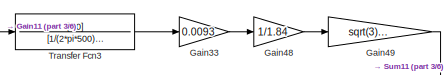
[diagram: root canvas - part 1/6, top center region]
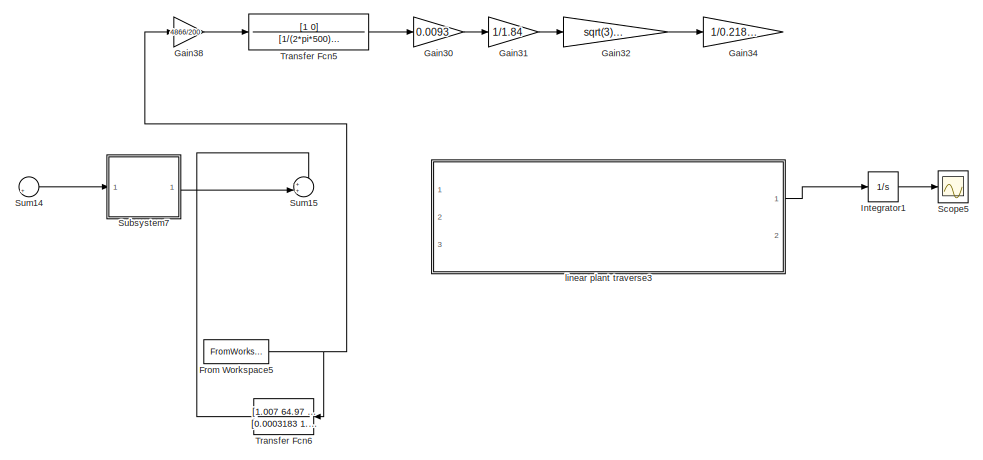
[diagram: root canvas - part 2/6, top right region]
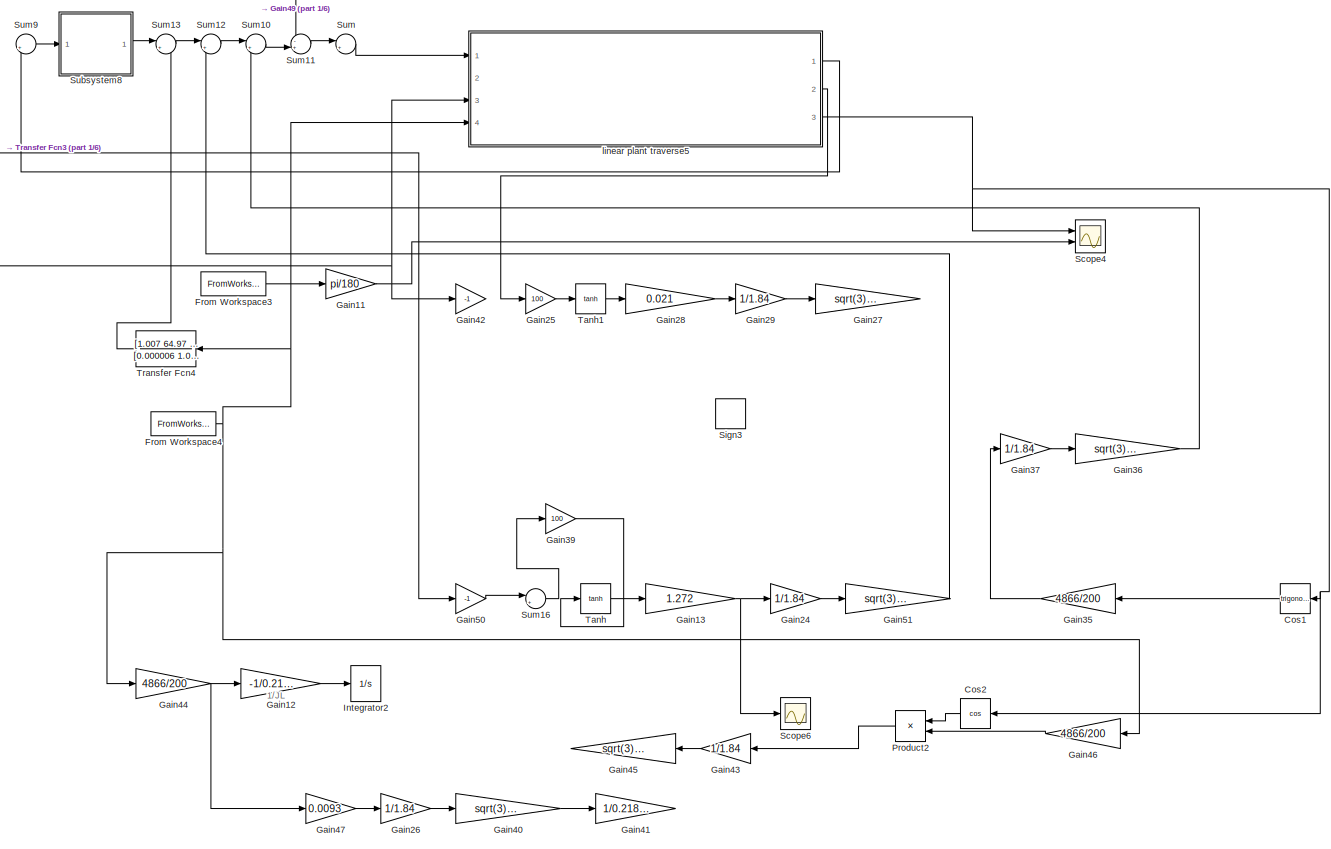
[diagram: root canvas - part 3/6, top right region]
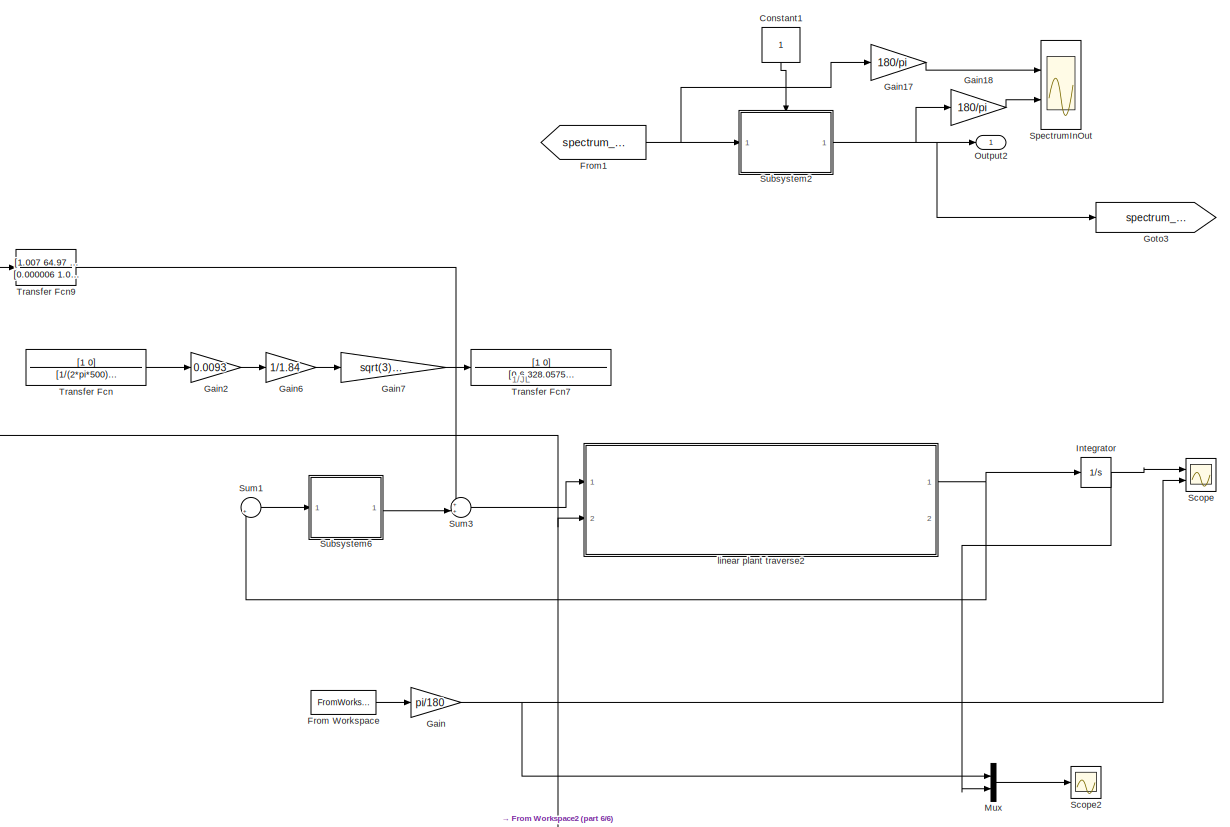
[diagram: root canvas - part 4/6, top left region]
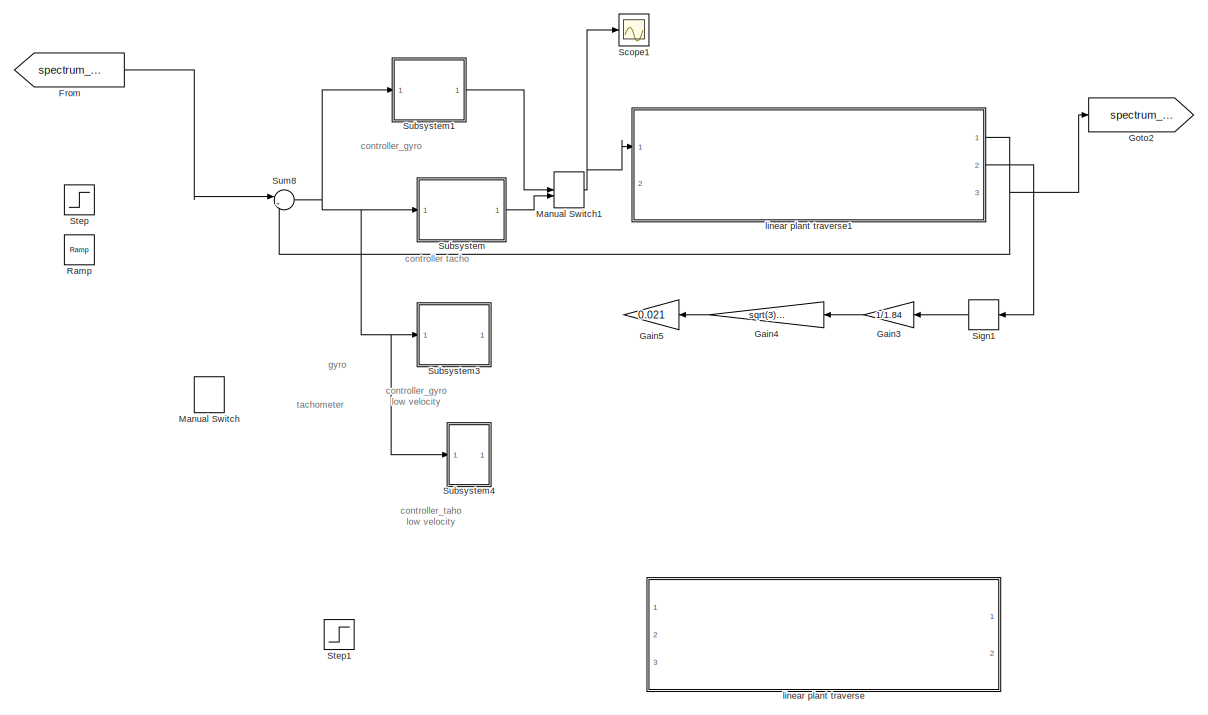
[diagram: root canvas - part 5/6, middle left region]
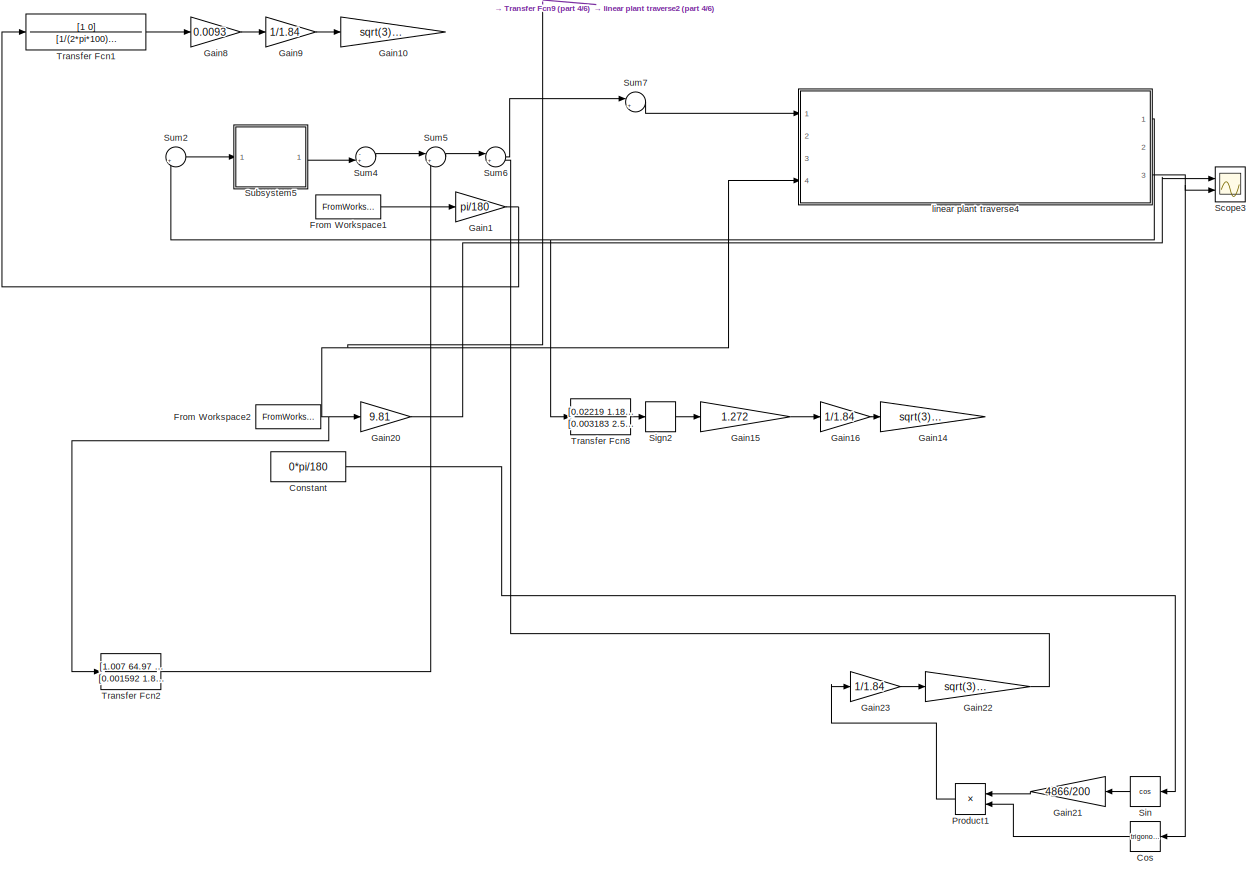
[diagram: root canvas - part 6/6, bottom left region]
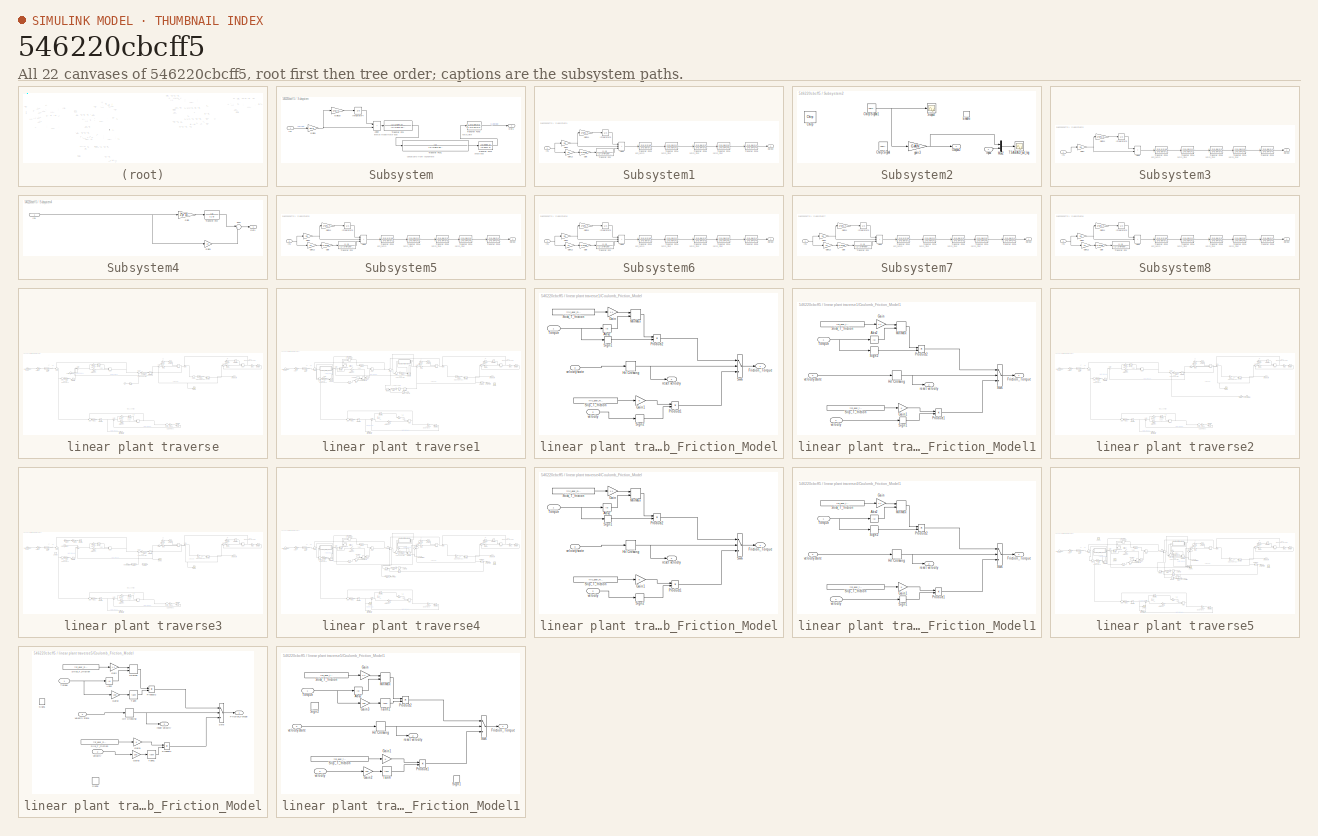
[diagram: thumbnail index - all 22 canvases of the model, root first then tree order]
MODEL slx_546220cbcff5
KIND model
CONFIG AbsTol = auto
CONFIG EnableMultiTasking = off
CONFIG FixedStep = auto
CONFIG MaxStep = auto
CONFIG MinStep = auto
CONFIG RelTol = 1e-3
CONFIG SampleTimeConstraint = Unconstrained
CONFIG SolverName = ode45
CONFIG StartTime = 0.0
CONFIG StopTime = 20
WORKSPACE source: mxarray member
WORKSPACE real_gyro_traverse_system: object (value not decoded)
BLOCK [Constant] Constant
  SampleTime = -1
  Value = 0*pi/180
BLOCK [Constant] Constant1
  AttributesFormatString = 1 - START\n0 -STOP\ninternal spectrum
  NameLocation = left
  OpenFcn = if get_param(gcbh,'value')-48 set_param(gcbh,'value','0','backgroundcolor','red');\nelse set_param(gcbh,'value','1','backgroundcolor','green');                       \nend
  OutDataTypeStr = boolean
BLOCK [Trigonometry] Cos
  Ports = [1, 1]
BLOCK [Trigonometry] Cos1
  Ports = [1, 1]
BLOCK [Trigonometry] Cos2
  Operator = cos
  Ports = [1, 1]
BLOCK [From] From
  GotoTag = spectrum_signal
BLOCK [FromWorkspace] From Workspace
  OutputAfterFinalValue = Setting to zero
  SampleTime = ts3/3
  VariableName = trdist
  ZeroCross = off
BLOCK [FromWorkspace] From Workspace1
  OutputAfterFinalValue = Setting to zero
  SampleTime = ts3/3
  VariableName = trdist
  ZeroCross = off
BLOCK [FromWorkspace] From Workspace2
  Interpolate = off
  OutputAfterFinalValue = Setting to zero
  SampleTime = ts3/3
  VariableName = gy
  ZeroCross = off
BLOCK [FromWorkspace] From Workspace3
  Interpolate = off
  OutputAfterFinalValue = Setting to zero
  SampleTime = ts3/3
  VariableName = trdist
  ZeroCross = off
BLOCK [FromWorkspace] From Workspace4
  Interpolate = off
  OutputAfterFinalValue = Setting to zero
  SampleTime = ts3/3
  VariableName = gy
  ZeroCross = off
BLOCK [FromWorkspace] From Workspace5
  Interpolate = off
  OutputAfterFinalValue = Setting to zero
  SampleTime = ts3/3
  VariableName = gy
  ZeroCross = off
BLOCK [From] From1
  GotoTag = spectrum_back
BLOCK [Gain] Gain
  Gain = pi/180
BLOCK [Gain] Gain1
  Gain = pi/180
BLOCK [Gain] Gain10
  Gain = sqrt(3)/0.3525
BLOCK [Gain] Gain11
  Gain = pi/180
BLOCK [Gain] Gain12
  Gain = -1/0.2189801
BLOCK [Gain] Gain13
  Gain = 1.272
BLOCK [Gain] Gain14
  Gain = sqrt(3)/0.3525
BLOCK [Gain] Gain15
  Gain = 1.272
BLOCK [Gain] Gain16
  Gain = 1/1.84
BLOCK [Gain] Gain17
  Gain = 180/pi
BLOCK [Gain] Gain18
  Gain = 180/pi
BLOCK [Gain] Gain2
  Gain = 0.0093
BLOCK [Gain] Gain20
  Gain = 9.81
BLOCK [Gain] Gain21
  Gain = 4866/200
BLOCK [Gain] Gain22
  Gain = sqrt(3)/0.3525
BLOCK [Gain] Gain23
  Gain = 1/1.84
BLOCK [Gain] Gain24
  Gain = 1/1.84
BLOCK [Gain] Gain25
  Gain = 100
BLOCK [Gain] Gain26
  Gain = 1/1.84
BLOCK [Gain] Gain27
  Gain = sqrt(3)/0.3525
BLOCK [Gain] Gain28
  Gain = 0.021
BLOCK [Gain] Gain29
  Gain = 1/1.84
BLOCK [Gain] Gain3
  Gain = 1/1.84
BLOCK [Gain] Gain30
  Gain = 0.0093
BLOCK [Gain] Gain31
  Gain = 1/1.84
BLOCK [Gain] Gain32
  Gain = sqrt(3)/0.3525
BLOCK [Gain] Gain33
  Gain = 0.0093
BLOCK [Gain] Gain34
  Commented = through
  Gain = 1/0.2189801
BLOCK [Gain] Gain35
  Gain = 4866/200
BLOCK [Gain] Gain36
  Gain = sqrt(3)/0.3525
BLOCK [Gain] Gain37
  Gain = 1/1.84
BLOCK [Gain] Gain38
  Gain = 4866/200
BLOCK [Gain] Gain39
  Gain = 100
BLOCK [Gain] Gain4
  Gain = sqrt(3)/0.3525
BLOCK [Gain] Gain40
  Gain = sqrt(3)/0.3525
BLOCK [Gain] Gain41
  Gain = 1/0.2189801
BLOCK [Gain] Gain42
  Gain = -1
BLOCK [Gain] Gain43
  Gain = 1/1.84
BLOCK [Gain] Gain44
  Gain = 4866/200
BLOCK [Gain] Gain45
  Gain = sqrt(3)/0.3525
BLOCK [Gain] Gain46
  Gain = 4866/200
BLOCK [Gain] Gain47
  Gain = 0.0093
BLOCK [Gain] Gain48
  Gain = 1/1.84
BLOCK [Gain] Gain49
  Gain = sqrt(3)/0.3525
BLOCK [Gain] Gain5
  Gain = 0.021
BLOCK [Gain] Gain50
  Gain = -1
BLOCK [Gain] Gain51
  Gain = sqrt(3)/0.3525
BLOCK [Gain] Gain6
  Gain = 1/1.84
BLOCK [Gain] Gain7
  Gain = sqrt(3)/0.3525
BLOCK [Gain] Gain8
  Gain = 0.0093
BLOCK [Gain] Gain9
  Gain = 1/1.84
BLOCK [Goto] Goto2
  GotoTag = spectrum_back
BLOCK [Goto] Goto3
  GotoTag = spectrum_signal
BLOCK [Integrator] Integrator
  Ports = [1, 1]
BLOCK [Integrator] Integrator1
  Ports = [1, 1]
BLOCK [Integrator] Integrator2
  Ports = [1, 1]
  ZeroCross = off
BLOCK [ManualSwitch] Manual Switch
  CurrentSetting = 0
  NameLocation = top
BLOCK [ManualSwitch] Manual Switch1
BLOCK [Mux] Mux
  DisplayOption = bar
  Inputs = 2
  Ports = [2, 1]
BLOCK [Outport] Output2
BLOCK [Product] Product1
  Ports = [2, 1]
BLOCK [Product] Product2
  Ports = [2, 1]
BLOCK [Reference] Ramp  REF=simulink/Sources/Ramp
  Ports = [0, 1]
  SourceBlock = simulink/Sources/Ramp
  SourceProductBaseCode = SL
  SourceType = Ramp
BLOCK [Scope] Scope
  Floating = off
  NumInputPorts = 2
  Ports = [2]
  ScopeSpecificationString = Simulink.scopes.TimeScopeBlockCfg('CurrentConfiguration', extmgr.ConfigurationSet(extmgr.Configuration('Core','General UI',true),extmgr.Configuration('Core','Source UI',true),extmgr.Configuration('Sources','WiredSimulink',true,'DataLoggingVariableName','ScopeData2'),extmgr.Configuration('Visuals','Time Domain',true,'SerializedDisplays',{struct('MinYLimReal','-0.00103','MaxYLimReal','0.00118','YLab...<+2109ch>
BLOCK [Scope] Scope1
  Floating = off
  NumInputPorts = 1
  Ports = [1]
  ScopeSpecificationString = Simulink.scopes.TimeScopeBlockCfg('CurrentConfiguration', extmgr.ConfigurationSet(extmgr.Configuration('Core','General UI',true),extmgr.Configuration('Core','Source UI',true),extmgr.Configuration('Sources','WiredSimulink',true,'DataLoggingVariableName','ScopeData1'),extmgr.Configuration('Visuals','Time Domain',true,'SerializedDisplays',{struct('MinYLimReal','-0.01621','MaxYLimReal','0.13797','YLab...<+2203ch>
BLOCK [Scope] Scope2
  Floating = off
  NumInputPorts = 1
  Ports = [1]
  ScopeSpecificationString = Simulink.scopes.TimeScopeBlockCfg('CurrentConfiguration', extmgr.ConfigurationSet(extmgr.Configuration('Core','General UI',true),extmgr.Configuration('Core','Source UI',true),extmgr.Configuration('Sources','WiredSimulink',true,'DataLoggingVariableName','in_data','DataLogging',true,'DataLoggingSaveFormat','Array'),extmgr.Configuration('Visuals','Time Domain',true,'SerializedDisplays',{struct('MinYL...<+1478ch>
BLOCK [Scope] Scope3
  Floating = off
  NumInputPorts = 2
  Ports = [2]
  ScopeSpecificationString = Simulink.scopes.TimeScopeBlockCfg('CurrentConfiguration', extmgr.ConfigurationSet(extmgr.Configuration('Core','General UI',true),extmgr.Configuration('Core','Source UI',true),extmgr.Configuration('Sources','WiredSimulink',true,'DataLoggingVariableName','ScopeData3'),extmgr.Configuration('Visuals','Time Domain',true,'SerializedDisplays',{struct('MinYLimReal','-21.76001','MaxYLimReal','25.64414','YL...<+2251ch>
BLOCK [Scope] Scope4
  Floating = off
  NumInputPorts = 2
  Ports = [2]
  ScopeSpecificationString = Simulink.scopes.TimeScopeBlockCfg('CurrentConfiguration', extmgr.ConfigurationSet(extmgr.Configuration('Core','General UI',true),extmgr.Configuration('Core','Source UI',true),extmgr.Configuration('Sources','WiredSimulink',true,'DataLoggingVariableName','ScopeData1'),extmgr.Configuration('Visuals','Time Domain',true,'SerializedDisplays',{struct('MinYLimReal','-0.1205','MaxYLimReal','0.11817','YLabe...<+2121ch>
BLOCK [Scope] Scope5
  Floating = off
  NumInputPorts = 1
  Ports = [1]
  ScopeSpecificationString = Simulink.scopes.TimeScopeBlockCfg('CurrentConfiguration', extmgr.ConfigurationSet(extmgr.Configuration('Core','General UI',true),extmgr.Configuration('Core','Source UI',true),extmgr.Configuration('Sources','WiredSimulink',true,'DataLoggingVariableName','ScopeData4'),extmgr.Configuration('Visuals','Time Domain',true,'SerializedDisplays',{struct('MinYLimReal','-1.00000','MaxYLimReal','1.00000','YLab...<+1410ch>
BLOCK [Scope] Scope6
  Floating = off
  NumInputPorts = 1
  Ports = [1]
  ScopeSpecificationString = Simulink.scopes.TimeScopeBlockCfg('CurrentConfiguration', extmgr.ConfigurationSet(extmgr.Configuration('Core','General UI',true),extmgr.Configuration('Core','Source UI',true),extmgr.Configuration('Sources','WiredSimulink',true,'DataLoggingVariableName','ScopeData6'),extmgr.Configuration('Visuals','Time Domain',true,'SerializedDisplays',{struct('MinYLimReal','-1.59','MaxYLimReal','1.59','YLabelReal...<+1372ch>
BLOCK [Signum] Sign1
BLOCK [Signum] Sign2
BLOCK [Signum] Sign3
  ZeroCross = off
BLOCK [Trigonometry] Sin
  Operator = cos
  Ports = [1, 1]
BLOCK [Scope] SpectrumInOut
  Floating = off
  NumInputPorts = 2
  Ports = [2]
  ScopeSpecificationString = Simulink.scopes.TimeScopeBlockCfg('CurrentConfiguration', extmgr.ConfigurationSet(extmgr.Configuration('Core','General UI',true),extmgr.Configuration('Core','Source UI',true),extmgr.Configuration('Sources','WiredSimulink',true,'DataLoggingVariableName','ScopeData1','SampleTime','0.001','DataLoggingSaveFormat','StructureWithTime'),extmgr.Configuration('Visuals','Time Domain',true,'SerializedDisplay...<+2449ch>
BLOCK [Step] Step
  After = 0.05
  SampleTime = 0
BLOCK [Step] Step1
  After = 10*pi/180
  SampleTime = 0
BLOCK [SubSystem] Subsystem
  Ports = [1, 1]
  RequestExecContextInheritance = off
  ShowPortLabels = SignalName
BLOCK [Sum] Subsystem/Add2
  IconShape = rectangular
  Ports = [2, 1]
BLOCK [Gain] Subsystem/Gain10
  Gain = 2*pi*3
BLOCK [Gain] Subsystem/Gain9
  Gain = 25.6
BLOCK [Inport] Subsystem/In1
  IconDisplay = Signal name
BLOCK [Integrator] Subsystem/Integrator4
  Ports = [1, 1]
BLOCK [Outport] Subsystem/Out1
  IconDisplay = Port number and signal name
BLOCK [TransferFcn] Subsystem/Transfer Fcn
  Denominator = [1/(2*pi*3.62)^2 0.014/1.7 1]
  Numerator = [1/(2*pi*4.5)^2 0.014/1.7 1]
BLOCK [TransferFcn] Subsystem/Transfer Fcn1
  Denominator = [1/(2*pi*6.06)^2 0.6/328.057 1]
BLOCK [TransferFcn] Subsystem/Transfer Fcn4
  Denominator = [0.0011 1]
  Numerator = [0.0083 1]
BLOCK [TransferFcn] Subsystem/Transfer Fcn5
  Denominator = [1 2*0.94*2*36.1*pi (2*pi*36.1)^2]
  Numerator = [1 2*0.08*2*36.1*pi (2*pi*36.1)^2]
BLOCK [SubSystem] Subsystem1
  Ports = [1, 1]
  RequestExecContextInheritance = off
BLOCK [Sum] Subsystem1/Add3
  IconShape = rectangular
  Inputs = +++
  Ports = [3, 1]
BLOCK [Gain] Subsystem1/Gain
  Gain = 0.0118
BLOCK [Gain] Subsystem1/Gain1
  Gain = 26
BLOCK [Gain] Subsystem1/Gain11
  Gain = 2*pi*1.4
BLOCK [Gain] Subsystem1/Gain12
  Gain = 24
BLOCK [Inport] Subsystem1/In1
BLOCK [Integrator] Subsystem1/Integrator5
  Ports = [1, 1]
BLOCK [Outport] Subsystem1/Output
BLOCK [TransferFcn] Subsystem1/Transfer Fcn
  Denominator = [1/(2*pi*100) 1]
  Numerator = [1 0]
BLOCK [TransferFcn] Subsystem1/Transfer Fcn1
  Denominator = [1 2*0.94*2*68*pi (2*pi*68)^2]
  Numerator = [1 2*0.08*2*68*pi (2*pi*68)^2]
BLOCK [TransferFcn] Subsystem1/Transfer Fcn2
  Denominator = [1 2*0.05*2*18*pi (2*pi*18)^2]
  Numerator = [1 2*0.5*2*18*pi (2*pi*18)^2]
BLOCK [TransferFcn] Subsystem1/Transfer Fcn3
  Denominator = [1 2*0.94*2*450*pi (2*pi*450)^2]
  Numerator = [1 2*0.08*2*450*pi (2*pi*450)^2]
BLOCK [TransferFcn] Subsystem1/Transfer Fcn4
  Denominator = [1 2*0.65*2*13*pi (2*pi*13)^2]
  Numerator = [1 2*0.05*2*13*pi (2*pi*13)^2]
BLOCK [TransferFcn] Subsystem1/Transfer Fcn6
  Denominator = [1 2*0.94*2*30*pi (2*pi*30)^2]
  Numerator = [1 2*0.08*2*30*pi (2*pi*30)^2]
BLOCK [SubSystem] Subsystem2
  Ports = [1, 1, 1]
  RequestExecContextInheritance = off
BLOCK [Reference] Subsystem2/Chirp  REF=dspsrcs4/Chirp
  Ports = [0, 1]
  SourceBlock = dspsrcs4/Chirp
  SourceProductBaseCode = DS
  SourceType = Chirp
BLOCK [Reference] Subsystem2/Chirp Signal  REF=simulink/Sources/Chirp Signal
  Commented = on
  Ports = [0, 1]
  SourceBlock = simulink/Sources/Chirp Signal
  SourceProductBaseCode = SL
  SourceType = chirp
BLOCK [Reference] Subsystem2/Chirp Signal1  REF=simulink/Sources/Chirp Signal
  Ports = [0, 1]
  SourceBlock = simulink/Sources/Chirp Signal
  SourceProductBaseCode = SL
  SourceType = chirp
BLOCK [EnablePort] Subsystem2/Enable
  Ports = []
  StatesWhenEnabling = reset
BLOCK [Inport] Subsystem2/Input
BLOCK [Mux] Subsystem2/Mux2
  DisplayOption = bar
  Inputs = 2
  Ports = [2, 1]
BLOCK [Outport] Subsystem2/Output2
BLOCK [Scope] Subsystem2/Scope2
  Floating = off
  NumInputPorts = 1
  Ports = [1]
  ScopeSpecificationString = Simulink.scopes.TimeScopeBlockCfg('CurrentConfiguration', extmgr.ConfigurationSet(extmgr.Configuration('Core','General UI',true),extmgr.Configuration('Core','Source UI',true),extmgr.Configuration('Sources','WiredSimulink',true,'DataLoggingVariableName','ScopeData3'),extmgr.Configuration('Visuals','Time Domain',true,'SerializedDisplays',{struct('MinYLimReal','-1.25','MaxYLimReal','1.25','YLabelReal...<+1427ch>
BLOCK [Scope] Subsystem2/TSABAD_out_log
  Floating = off
  NumInputPorts = 1
  Ports = [1]
  ScopeSpecificationString = Simulink.scopes.TimeScopeBlockCfg('CurrentConfiguration', extmgr.ConfigurationSet(extmgr.Configuration('Core','General UI',true),extmgr.Configuration('Core','Source UI',true),extmgr.Configuration('Sources','WiredSimulink',true,'DataLogging',true,'DataLoggingVariableName','TSABAD_out_log','DataLoggingSaveFormat','Array','DataLoggingDecimation','1','DataLoggingDecimateData',true,'SampleTime','0.001'...<+1754ch>
BLOCK [Gain] Subsystem2/gain 3
  Gain = GAIN
  OutDataTypeStr = Inherit: Same as input
  ParamDataTypeStr = Inherit: Same as input
  SampleTime = ts3
  SaturateOnIntegerOverflow = on
BLOCK [SubSystem] Subsystem3
  Ports = [1, 1]
  RequestExecContextInheritance = off
BLOCK [Sum] Subsystem3/Add3
  IconShape = rectangular
  Ports = [2, 1]
BLOCK [Gain] Subsystem3/Gain1
  Gain = 26
BLOCK [Gain] Subsystem3/Gain11
  Gain = 2*pi*2.5
BLOCK [Inport] Subsystem3/In1
BLOCK [Integrator] Subsystem3/Integrator5
  Ports = [1, 1]
BLOCK [Outport] Subsystem3/Output
BLOCK [TransferFcn] Subsystem3/Transfer Fcn1
  Denominator = [1 2*0.94*2*68*pi (2*pi*68)^2]
  Numerator = [1 2*0.08*2*68*pi (2*pi*68)^2]
BLOCK [TransferFcn] Subsystem3/Transfer Fcn2
  Denominator = [1 2*0.05*2*18*pi (2*pi*18)^2]
  Numerator = [1 2*0.5*2*18*pi (2*pi*18)^2]
BLOCK [TransferFcn] Subsystem3/Transfer Fcn3
  Denominator = [1 2*0.94*2*450*pi (2*pi*450)^2]
  Numerator = [1 2*0.08*2*450*pi (2*pi*450)^2]
BLOCK [TransferFcn] Subsystem3/Transfer Fcn4
  Denominator = [1 2*0.65*2*13*pi (2*pi*13)^2]
  Numerator = [1 2*0.05*2*13*pi (2*pi*13)^2]
BLOCK [TransferFcn] Subsystem3/Transfer Fcn6
  Denominator = [1 2*0.94*2*30*pi (2*pi*30)^2]
  Numerator = [1 2*0.08*2*30*pi (2*pi*30)^2]
BLOCK [SubSystem] Subsystem4
  Ports = [1, 1]
  RequestExecContextInheritance = off
BLOCK [Gain] Subsystem4/Gain
  Gain = 2*pi*1000
BLOCK [Gain] Subsystem4/Gain1
  Gain = 10
BLOCK [Inport] Subsystem4/In1
BLOCK [Outport] Subsystem4/Out1
BLOCK [Sum] Subsystem4/Sum
  Inputs = |++
  Ports = [2, 1]
BLOCK [TransferFcn] Subsystem4/Transfer Fcn
  Denominator = [1  0]
BLOCK [SubSystem] Subsystem5
  Ports = [1, 1]
  RequestExecContextInheritance = off
BLOCK [Sum] Subsystem5/Add3
  IconShape = rectangular
  Inputs = +++
  Ports = [3, 1]
BLOCK [Gain] Subsystem5/Gain
  Gain = 0.0118
BLOCK [Gain] Subsystem5/Gain1
  Gain = 26
BLOCK [Gain] Subsystem5/Gain11
  Gain = 2*pi*1.4
BLOCK [Gain] Subsystem5/Gain12
  Gain = 24
BLOCK [Inport] Subsystem5/In1
BLOCK [Integrator] Subsystem5/Integrator5
  Ports = [1, 1]
BLOCK [Outport] Subsystem5/Output
BLOCK [TransferFcn] Subsystem5/Transfer Fcn
  Denominator = [1/(2*pi*100) 1]
  Numerator = [1 0]
BLOCK [TransferFcn] Subsystem5/Transfer Fcn1
  Denominator = [1 2*0.94*2*68*pi (2*pi*68)^2]
  Numerator = [1 2*0.08*2*68*pi (2*pi*68)^2]
BLOCK [TransferFcn] Subsystem5/Transfer Fcn2
  Denominator = [1 2*0.05*2*18*pi (2*pi*18)^2]
  Numerator = [1 2*0.5*2*18*pi (2*pi*18)^2]
BLOCK [TransferFcn] Subsystem5/Transfer Fcn3
  Denominator = [1 2*0.94*2*450*pi (2*pi*450)^2]
  Numerator = [1 2*0.08*2*450*pi (2*pi*450)^2]
BLOCK [TransferFcn] Subsystem5/Transfer Fcn4
  Denominator = [1 2*0.65*2*13*pi (2*pi*13)^2]
  Numerator = [1 2*0.05*2*13*pi (2*pi*13)^2]
BLOCK [TransferFcn] Subsystem5/Transfer Fcn6
  Denominator = [1 2*0.94*2*30*pi (2*pi*30)^2]
  Numerator = [1 2*0.08*2*30*pi (2*pi*30)^2]
BLOCK [SubSystem] Subsystem6
  Ports = [1, 1]
  RequestExecContextInheritance = off
BLOCK [Sum] Subsystem6/Add3
  IconShape = rectangular
  Inputs = +++
  Ports = [3, 1]
BLOCK [Gain] Subsystem6/Gain
  Gain = 0.0118
BLOCK [Gain] Subsystem6/Gain1
  Gain = 26
BLOCK [Gain] Subsystem6/Gain11
  Gain = 2*pi*1.4
BLOCK [Gain] Subsystem6/Gain12
  Gain = 24
BLOCK [Inport] Subsystem6/In1
BLOCK [Integrator] Subsystem6/Integrator5
  Ports = [1, 1]
BLOCK [Outport] Subsystem6/Output
BLOCK [TransferFcn] Subsystem6/Transfer Fcn
  Denominator = [1/(2*pi*100) 1]
  Numerator = [1 0]
BLOCK [TransferFcn] Subsystem6/Transfer Fcn1
  Denominator = [1 2*0.94*2*68*pi (2*pi*68)^2]
  Numerator = [1 2*0.08*2*68*pi (2*pi*68)^2]
BLOCK [TransferFcn] Subsystem6/Transfer Fcn2
  Denominator = [1 2*0.05*2*18*pi (2*pi*18)^2]
  Numerator = [1 2*0.5*2*18*pi (2*pi*18)^2]
BLOCK [TransferFcn] Subsystem6/Transfer Fcn3
  Denominator = [1 2*0.94*2*450*pi (2*pi*450)^2]
  Numerator = [1 2*0.08*2*450*pi (2*pi*450)^2]
BLOCK [TransferFcn] Subsystem6/Transfer Fcn4
  Denominator = [1 2*0.65*2*13*pi (2*pi*13)^2]
  Numerator = [1 2*0.05*2*13*pi (2*pi*13)^2]
BLOCK [TransferFcn] Subsystem6/Transfer Fcn6
  Denominator = [1 2*0.94*2*30*pi (2*pi*30)^2]
  Numerator = [1 2*0.08*2*30*pi (2*pi*30)^2]
BLOCK [SubSystem] Subsystem7
  Ports = [1, 1]
  RequestExecContextInheritance = off
BLOCK [Sum] Subsystem7/Add3
  IconShape = rectangular
  Inputs = +++
  Ports = [3, 1]
BLOCK [Gain] Subsystem7/Gain
  Gain = 0.0118
BLOCK [Gain] Subsystem7/Gain1
  Gain = 26
BLOCK [Gain] Subsystem7/Gain11
  Gain = 2*pi*1.4
BLOCK [Gain] Subsystem7/Gain12
  Gain = 24
BLOCK [Inport] Subsystem7/In1
BLOCK [Integrator] Subsystem7/Integrator5
  Ports = [1, 1]
BLOCK [Outport] Subsystem7/Output
BLOCK [TransferFcn] Subsystem7/Transfer Fcn
  Denominator = [1/(2*pi*500) 1]
  Numerator = [1 0]
BLOCK [TransferFcn] Subsystem7/Transfer Fcn1
  Denominator = [1 2*0.94*2*68*pi (2*pi*68)^2]
  Numerator = [1 2*0.08*2*68*pi (2*pi*68)^2]
BLOCK [TransferFcn] Subsystem7/Transfer Fcn2
  Denominator = [1 2*0.05*2*18*pi (2*pi*18)^2]
  Numerator = [1 2*0.5*2*18*pi (2*pi*18)^2]
BLOCK [TransferFcn] Subsystem7/Transfer Fcn3
  Denominator = [1 2*0.94*2*450*pi (2*pi*450)^2]
  Numerator = [1 2*0.08*2*450*pi (2*pi*450)^2]
BLOCK [TransferFcn] Subsystem7/Transfer Fcn4
  Denominator = [1 2*0.65*2*13*pi (2*pi*13)^2]
  Numerator = [1 2*0.05*2*13*pi (2*pi*13)^2]
BLOCK [TransferFcn] Subsystem7/Transfer Fcn6
  Denominator = [1 2*0.94*2*30*pi (2*pi*30)^2]
  Numerator = [1 2*0.08*2*30*pi (2*pi*30)^2]
BLOCK [SubSystem] Subsystem8
  Ports = [1, 1]
  RequestExecContextInheritance = off
BLOCK [Sum] Subsystem8/Add3
  IconShape = rectangular
  Inputs = +++
  Ports = [3, 1]
BLOCK [Gain] Subsystem8/Gain
  Gain = 0.0118
BLOCK [Gain] Subsystem8/Gain1
  Gain = 26
BLOCK [Gain] Subsystem8/Gain11
  Gain = 2*pi*1.4
BLOCK [Gain] Subsystem8/Gain12
  Gain = 24
BLOCK [Inport] Subsystem8/In1
BLOCK [Integrator] Subsystem8/Integrator5
  Ports = [1, 1]
BLOCK [Outport] Subsystem8/Output
BLOCK [TransferFcn] Subsystem8/Transfer Fcn
  Denominator = [1/(2*pi*500) 1]
  Numerator = [1 0]
BLOCK [TransferFcn] Subsystem8/Transfer Fcn1
  Denominator = [1 2*0.94*2*68*pi (2*pi*68)^2]
  Numerator = [1 2*0.08*2*68*pi (2*pi*68)^2]
BLOCK [TransferFcn] Subsystem8/Transfer Fcn2
  Denominator = [1 2*0.05*2*18*pi (2*pi*18)^2]
  Numerator = [1 2*0.5*2*18*pi (2*pi*18)^2]
BLOCK [TransferFcn] Subsystem8/Transfer Fcn3
  Denominator = [1 2*0.94*2*450*pi (2*pi*450)^2]
  Numerator = [1 2*0.08*2*450*pi (2*pi*450)^2]
BLOCK [TransferFcn] Subsystem8/Transfer Fcn4
  Denominator = [1 2*0.65*2*13*pi (2*pi*13)^2]
  Numerator = [1 2*0.05*2*13*pi (2*pi*13)^2]
BLOCK [TransferFcn] Subsystem8/Transfer Fcn6
  Denominator = [1 2*0.94*2*30*pi (2*pi*30)^2]
  Numerator = [1 2*0.08*2*30*pi (2*pi*30)^2]
BLOCK [Sum] Sum
  Inputs = |++
  Ports = [2, 1]
BLOCK [Sum] Sum1
  Inputs = |+-
  Ports = [2, 1]
BLOCK [Sum] Sum10
  Inputs = |+-
  Ports = [2, 1]
BLOCK [Sum] Sum11
  Inputs = -+|
  Ports = [2, 1]
BLOCK [Sum] Sum12
  Inputs = |++
  Ports = [2, 1]
BLOCK [Sum] Sum13
  Inputs = |++
  Ports = [2, 1]
BLOCK [Sum] Sum14
  Inputs = |+-
  Ports = [2, 1]
BLOCK [Sum] Sum15
  Inputs = ++|
  Ports = [2, 1]
BLOCK [Sum] Sum16
  Inputs = |++
  Ports = [2, 1]
BLOCK [Sum] Sum2
  Inputs = |+-
  Ports = [2, 1]
BLOCK [Sum] Sum3
  Inputs = ++|
  Ports = [2, 1]
BLOCK [Sum] Sum4
  Inputs = -+|
  Ports = [2, 1]
BLOCK [Sum] Sum5
  Inputs = |++
  Ports = [2, 1]
BLOCK [Sum] Sum6
  Inputs = |+-
  Ports = [2, 1]
BLOCK [Sum] Sum7
  Inputs = |++
  Ports = [2, 1]
BLOCK [Sum] Sum8
  Inputs = |+-
  Ports = [2, 1]
BLOCK [Sum] Sum9
  Inputs = |+-
  Ports = [2, 1]
BLOCK [Trigonometry] Tanh
  Operator = tanh
  Ports = [1, 1]
BLOCK [Trigonometry] Tanh1
  Operator = tanh
  Ports = [1, 1]
BLOCK [TransferFcn] Transfer Fcn
  Denominator = [1/(2*pi*500) 1]
  Numerator = [1 0]
BLOCK [TransferFcn] Transfer Fcn1
  Denominator = [1/(2*pi*100) 1]
  Numerator = [1 0]
BLOCK [TransferFcn] Transfer Fcn2
  Denominator = [0.001592 1.87 546.8]
  Numerator = [1.007 64.97 3.552*10^4]
BLOCK [TransferFcn] Transfer Fcn3
  Denominator = [1/(2*pi*500) 1]
  Numerator = [1 0]
BLOCK [TransferFcn] Transfer Fcn4
  Denominator = [0.000006 1.009 546.8]
  Numerator = [1.007 64.97 3.552*10^4]
BLOCK [TransferFcn] Transfer Fcn5
  Denominator = [1/(2*pi*500) 1]
  Numerator = [1 0]
BLOCK [TransferFcn] Transfer Fcn6
  Denominator = [0.0003183 1.174 546.8]
  Numerator = [1.007 64.97 3.552*10^4]
BLOCK [TransferFcn] Transfer Fcn7
  Commented = through
  Denominator = [0.6 328.0575777]
  Numerator = [1 0]
BLOCK [TransferFcn] Transfer Fcn8
  Denominator = [0.003183 2.538  528.2 3.284*10^4 5.857*10^6]
  Numerator = [0.02219 1.182 1026 1.42*10^4 5.857*10^6]
BLOCK [TransferFcn] Transfer Fcn9
  Denominator = [0.000006 1.009 546.8]
  Numerator = [1.007 64.97 3.552*10^4]
BLOCK [SubSystem] linear plant traverse
  Ports = [3, 2]
  RequestExecContextInheritance = off
BLOCK [Sum] linear plant traverse/Add1
  IconShape = rectangular
  Ports = [2, 1]
BLOCK [Sum] linear plant traverse/Add2
  IconShape = rectangular
  Ports = [2, 1]
BLOCK [Sum] linear plant traverse/Add4
  IconShape = rectangular
  Ports = [2, 1]
BLOCK [Sum] linear plant traverse/Add5
  IconShape = rectangular
  Ports = [2, 1]
BLOCK [Gain] linear plant traverse/Gain
  Gain = 1.84
BLOCK [Gain] linear plant traverse/Gain1
  Gain = Kv2
BLOCK [Gain] linear plant traverse/Gain10
  Gain = 1/0.0065
BLOCK [Gain] linear plant traverse/Gain13
  Gain = Kv2
BLOCK [Gain] linear plant traverse/Gain14
  Gain = 0.6
BLOCK [Gain] linear plant traverse/Gain15
  Gain = 1/0.2189801
BLOCK [Gain] linear plant traverse/Gain16
  Gain = Kk2
BLOCK [Gain] linear plant traverse/Gain17
  Gain = Jl_inverse2
BLOCK [Gain] linear plant traverse/Gain18
  Gain = 328.0575777
BLOCK [Gain] linear plant traverse/Gain2
  Gain = 0.3525 /sqrt(3)
BLOCK [Gain] linear plant traverse/Gain3
  Gain = 1/0.0093
BLOCK [Gain] linear plant traverse/Gain4
  Gain = 1.7
BLOCK [Gain] linear plant traverse/Gain5
  Gain = 0.014
BLOCK [Gain] linear plant traverse/Gain6
  Gain = 1/(3.166864961*10^-3)
BLOCK [Gain] linear plant traverse/Gain7
  Gain = Kk2
BLOCK [Gain] linear plant traverse/Gain8
  Gain = Jl_inverse2
BLOCK [Gain] linear plant traverse/Gain9
  Gain = 25000/200
BLOCK [Inport] linear plant traverse/In1
  Port = 3
BLOCK [Integrator] linear plant traverse/Integrator
  Ports = [1, 1]
BLOCK [Integrator] linear plant traverse/Integrator1
  Ports = [1, 1]
  ZeroCross = off
BLOCK [Integrator] linear plant traverse/Integrator10
  Ports = [1, 1]
BLOCK [Integrator] linear plant traverse/Integrator2
  Ports = [1, 1]
  ZeroCross = off
BLOCK [Integrator] linear plant traverse/Integrator3
  Ports = [1, 1]
  ZeroCross = off
BLOCK [Integrator] linear plant traverse/Integrator5
  Ports = [1, 1]
  ZeroCross = off
BLOCK [Integrator] linear plant traverse/Integrator6
  Ports = [1, 1]
BLOCK [Integrator] linear plant traverse/Integrator7
  Ports = [1, 1]
BLOCK [Integrator] linear plant traverse/Integrator8
  Ports = [1, 1]
  ZeroCross = off
BLOCK [Integrator] linear plant traverse/Integrator9
  Ports = [1, 1]
BLOCK [Scope] linear plant traverse/Scope
  Floating = off
  NumInputPorts = 1
  Ports = [1]
  ScopeSpecificationString = Simulink.scopes.TimeScopeBlockCfg('CurrentConfiguration', extmgr.ConfigurationSet(extmgr.Configuration('Core','General UI',true),extmgr.Configuration('Core','Source UI',true),extmgr.Configuration('Sources','WiredSimulink',true),extmgr.Configuration('Visuals','Time Domain',true,'SerializedDisplays',{struct('MinYLimReal','-12.9931','MaxYLimReal','116.93788','YLabelReal','','MinYLimMag','0.00000','Ma...<+1695ch>  <repeated x6 — deduplicated; at blocks: Scope>
BLOCK [Sum] linear plant traverse/Sum1
  Inputs = -+|
  Ports = [2, 1]
  SaturateOnIntegerOverflow = on
BLOCK [Sum] linear plant traverse/Sum10
  Inputs = -+|
  Ports = [2, 1]
  SaturateOnIntegerOverflow = on
BLOCK [Sum] linear plant traverse/Sum12
  Inputs = ++|
  Ports = [2, 1]
  SaturateOnIntegerOverflow = on
BLOCK [Sum] linear plant traverse/Sum14
  Inputs = -+|-
  Ports = [3, 1]
  SaturateOnIntegerOverflow = on
BLOCK [Sum] linear plant traverse/Sum2
  Inputs = |+-
  Ports = [2, 1]
BLOCK [Sum] linear plant traverse/Sum3
  Inputs = |+-
  Ports = [2, 1]
BLOCK [Sum] linear plant traverse/Sum4
  Inputs = -+|
  Ports = [2, 1]
BLOCK [Sum] linear plant traverse/Sum5
  Inputs = -+|-
  Ports = [3, 1]
BLOCK [Sum] linear plant traverse/Sum6
  Inputs = |+-
  Ports = [2, 1]
BLOCK [Sum] linear plant traverse/Sum7
  Inputs = -+|
  Ports = [2, 1]
  SaturateOnIntegerOverflow = on
BLOCK [Sum] linear plant traverse/Sum9
  Inputs = |+-+
  Ports = [3, 1]
BLOCK [Inport] linear plant traverse/current command traverse
BLOCK [Inport] linear plant traverse/external disturbance
  Port = 2
BLOCK [Outport] linear plant traverse/gun speed gyroscope
BLOCK [Outport] linear plant traverse/motor speed tachometer
  Port = 2
BLOCK [SubSystem] linear plant traverse1
  Ports = [2, 3]
  RequestExecContextInheritance = off
BLOCK [Abs] linear plant traverse1/Abs
  SaturateOnIntegerOverflow = off
BLOCK [Sum] linear plant traverse1/Add1
  IconShape = rectangular
  Ports = [2, 1]
BLOCK [Sum] linear plant traverse1/Add2
  IconShape = rectangular
  Ports = [2, 1]
BLOCK [Sum] linear plant traverse1/Add4
  IconShape = rectangular
  Ports = [2, 1]
BLOCK [Sum] linear plant traverse1/Add5
  IconShape = rectangular
  Ports = [2, 1]
BLOCK [Constant] linear plant traverse1/Constant1
BLOCK [Trigonometry] linear plant traverse1/Cos
  Operator = cos
  Ports = [1, 1]
BLOCK [SubSystem] linear plant traverse1/Coulomb_Friction_Model
  NameLocation = top
  Ports = [3, 2]
  RequestExecContextInheritance = off
BLOCK [Abs] linear plant traverse1/Coulomb_Friction_Model/Abs2
  SaturateOnIntegerOverflow = off
  ZeroCross = off
BLOCK [Outport] linear plant traverse1/Coulomb_Friction_Model/Friction_Torque
BLOCK [Gain] linear plant traverse1/Coulomb_Friction_Model/Gain
  Gain = 1.1
BLOCK [Gain] linear plant traverse1/Coulomb_Friction_Model/Gain1
BLOCK [HitCross] linear plant traverse1/Coulomb_Friction_Model/Hit Crossing
  Ports = [1, 1]
  ZeroCross = off
BLOCK [MinMax] linear plant traverse1/Coulomb_Friction_Model/MinMax
  Inputs = 2
  Ports = [2, 1]
BLOCK [Product] linear plant traverse1/Coulomb_Friction_Model/Product1
  Ports = [2, 1]
  RndMeth = Zero
BLOCK [Product] linear plant traverse1/Coulomb_Friction_Model/Product2
  Ports = [2, 1]
  RndMeth = Zero
BLOCK [Signum] linear plant traverse1/Coulomb_Friction_Model/Sign1
  ZeroCross = off
BLOCK [Signum] linear plant traverse1/Coulomb_Friction_Model/Sign2
  ZeroCross = off
BLOCK [Constant] linear plant traverse1/Coulomb_Friction_Model/Slip_T_friction
  Value = fric_gear_motor_traverse
BLOCK [Constant] linear plant traverse1/Coulomb_Friction_Model/Stick_T_friction
  Value = fric_gear_motor_traverse
BLOCK [Switch] linear plant traverse1/Coulomb_Friction_Model/Sw6
  Threshold = 0.5
  ZeroCross = off
BLOCK [Inport] linear plant traverse1/Coulomb_Friction_Model/Torque
BLOCK [Outport] linear plant traverse1/Coulomb_Friction_Model/reset velocity
  Port = 2
BLOCK [Inport] linear plant traverse1/Coulomb_Friction_Model/velocity
  Port = 2
BLOCK [Inport] linear plant traverse1/Coulomb_Friction_Model/velocity state
  Port = 3
BLOCK [SubSystem] linear plant traverse1/Coulomb_Friction_Model1
  NameLocation = top
  Ports = [3, 2]
  RequestExecContextInheritance = off
BLOCK [Abs] linear plant traverse1/Coulomb_Friction_Model1/Abs2
  SaturateOnIntegerOverflow = off
  ZeroCross = off
BLOCK [Outport] linear plant traverse1/Coulomb_Friction_Model1/Friction_Torque
BLOCK [Gain] linear plant traverse1/Coulomb_Friction_Model1/Gain
  Gain = 1.1
BLOCK [Gain] linear plant traverse1/Coulomb_Friction_Model1/Gain1
BLOCK [HitCross] linear plant traverse1/Coulomb_Friction_Model1/Hit Crossing
  Ports = [1, 1]
  ZeroCross = off
BLOCK [MinMax] linear plant traverse1/Coulomb_Friction_Model1/MinMax
  Inputs = 2
  Ports = [2, 1]
BLOCK [Product] linear plant traverse1/Coulomb_Friction_Model1/Product1
  Ports = [2, 1]
  RndMeth = Zero
BLOCK [Product] linear plant traverse1/Coulomb_Friction_Model1/Product2
  Ports = [2, 1]
  RndMeth = Zero
BLOCK [Signum] linear plant traverse1/Coulomb_Friction_Model1/Sign1
  ZeroCross = off
BLOCK [Signum] linear plant traverse1/Coulomb_Friction_Model1/Sign2
  ZeroCross = off
BLOCK [Constant] linear plant traverse1/Coulomb_Friction_Model1/Slip_T_friction
  SampleTime = 0
  Value = fric_gear_turrent_gun_traverse
BLOCK [Constant] linear plant traverse1/Coulomb_Friction_Model1/Stick_T_friction
  SampleTime = 0
  Value = fric_gear_turrent_gun_traverse
BLOCK [Switch] linear plant traverse1/Coulomb_Friction_Model1/Sw6
  Threshold = 0.5
  ZeroCross = off
BLOCK [Inport] linear plant traverse1/Coulomb_Friction_Model1/Torque
BLOCK [Outport] linear plant traverse1/Coulomb_Friction_Model1/reset velocity
  Port = 2
BLOCK [Inport] linear plant traverse1/Coulomb_Friction_Model1/velocity
  Port = 2
BLOCK [Inport] linear plant traverse1/Coulomb_Friction_Model1/velocity state
  Port = 3
BLOCK [DeadZone] linear plant traverse1/Dead Zone1
  LowerValue = -0.07*10^-3
  SaturateOnIntegerOverflow = off
  UpperValue = 0.07*10^-3
  ZeroCross = off
BLOCK [Gain] linear plant traverse1/Gain
  Gain = 1.84
BLOCK [Gain] linear plant traverse1/Gain1
  Gain = Kv2
BLOCK [Gain] linear plant traverse1/Gain10
  Gain = 1/0.0065
BLOCK [Gain] linear plant traverse1/Gain13
  Gain = Kv2
BLOCK [Gain] linear plant traverse1/Gain14
  Gain = 0.6
BLOCK [Gain] linear plant traverse1/Gain15
  Gain = 1/0.2189801
BLOCK [Gain] linear plant traverse1/Gain16
  Gain = Kk2
BLOCK [Gain] linear plant traverse1/Gain17
  Gain = Jl_inverse2
BLOCK [Gain] linear plant traverse1/Gain18
  Gain = 328.0575777
BLOCK [Gain] linear plant traverse1/Gain2
  Gain = 0.3525 /sqrt(3)
BLOCK [Gain] linear plant traverse1/Gain3
  Gain = 1/0.0093
BLOCK [Gain] linear plant traverse1/Gain4
  Gain = 1.7
BLOCK [Gain] linear plant traverse1/Gain5
  Gain = 0.014
BLOCK [Gain] linear plant traverse1/Gain6
  Gain = 1/(3.166864961*10^-3)
BLOCK [Gain] linear plant traverse1/Gain7
  Gain = Kk2
BLOCK [Gain] linear plant traverse1/Gain8
  Gain = Jl_inverse2
BLOCK [Gain] linear plant traverse1/Gain9
  Gain = 4866/200
BLOCK [Integrator] linear plant traverse1/Integrator
  Ports = [1, 1]
BLOCK [Integrator] linear plant traverse1/Integrator1
  Ports = [1, 1]
  ZeroCross = off
BLOCK [Integrator] linear plant traverse1/Integrator10
  Ports = [1, 1]
BLOCK [Integrator] linear plant traverse1/Integrator11
  Ports = [1, 1]
BLOCK [Integrator] linear plant traverse1/Integrator2
  ExternalReset = rising
  Ports = [2, 1, 0, 0, 1]
  ShowStatePort = on
  ZeroCross = off
BLOCK [Integrator] linear plant traverse1/Integrator3
  Ports = [1, 1]
  ZeroCross = off
BLOCK [Integrator] linear plant traverse1/Integrator4
  Ports = [1, 1]
BLOCK [Integrator] linear plant traverse1/Integrator5
  ExternalReset = rising
  Ports = [2, 1, 0, 0, 1]
  ShowStatePort = on
  ZeroCross = off
BLOCK [Integrator] linear plant traverse1/Integrator6
  Ports = [1, 1]
BLOCK [Integrator] linear plant traverse1/Integrator7
  Ports = [1, 1]
BLOCK [Integrator] linear plant traverse1/Integrator8
  Ports = [1, 1]
  ZeroCross = off
BLOCK [Integrator] linear plant traverse1/Integrator9
  Ports = [1, 1]
BLOCK [Product] linear plant traverse1/Product
  Ports = [2, 1]
BLOCK [Product] linear plant traverse1/Product1
  Ports = [2, 1]
BLOCK [Scope] linear plant traverse1/Scope
  Floating = off
  NumInputPorts = 1
  Ports = [1]
BLOCK [Signum] linear plant traverse1/Sign
BLOCK [Trigonometry] linear plant traverse1/Sin
  Ports = [1, 1]
BLOCK [Sum] linear plant traverse1/Sum1
  Inputs = -+|
  Ports = [2, 1]
  SaturateOnIntegerOverflow = on
BLOCK [Sum] linear plant traverse1/Sum14
  Inputs = -+|-
  Ports = [3, 1]
  SaturateOnIntegerOverflow = on
BLOCK [Sum] linear plant traverse1/Sum2
  Inputs = |+-
  Ports = [2, 1]
BLOCK [Sum] linear plant traverse1/Sum3
  Inputs = |+-
  Ports = [2, 1]
BLOCK [Sum] linear plant traverse1/Sum4
  Inputs = -+|
  Ports = [2, 1]
BLOCK [Sum] linear plant traverse1/Sum5
  Inputs = -+|
  Ports = [2, 1]
BLOCK [Sum] linear plant traverse1/Sum6
  Inputs = |+-
  Ports = [2, 1]
BLOCK [Sum] linear plant traverse1/Sum7
  Inputs = -+|
  Ports = [2, 1]
  SaturateOnIntegerOverflow = on
BLOCK [Sum] linear plant traverse1/Sum8
  Inputs = -+|
  Ports = [2, 1]
  SaturateOnIntegerOverflow = on
BLOCK [Sum] linear plant traverse1/Sum9
  Inputs = |+-
  Ports = [2, 1]
BLOCK [Inport] linear plant traverse1/cant angle
  Port = 2
BLOCK [Inport] linear plant traverse1/current command traverse
BLOCK [Outport] linear plant traverse1/gun angle gyroscope 
  Port = 3
BLOCK [Outport] linear plant traverse1/gun speed gyroscope
BLOCK [ManualSwitch] linear plant traverse1/linearization backlash traverse
  CurrentSetting = 0
BLOCK [ManualSwitch] linear plant traverse1/linearization backlash1 az
  CurrentSetting = 0
BLOCK [Outport] linear plant traverse1/motor speed tachometer
  Port = 2
BLOCK [SubSystem] linear plant traverse2
  Ports = [2, 2]
  RequestExecContextInheritance = off
BLOCK [Sum] linear plant traverse2/Add1
  IconShape = rectangular
  Ports = [2, 1]
BLOCK [Sum] linear plant traverse2/Add2
  IconShape = rectangular
  Ports = [2, 1]
BLOCK [Sum] linear plant traverse2/Add4
  IconShape = rectangular
  Ports = [2, 1]
BLOCK [Sum] linear plant traverse2/Add5
  IconShape = rectangular
  Ports = [2, 1]
BLOCK [Gain] linear plant traverse2/Gain
  Gain = 1.84
BLOCK [Gain] linear plant traverse2/Gain1
  Gain = 1/(3.649668334*10^-3)
BLOCK [Gain] linear plant traverse2/Gain10
  Gain = 1/0.0065
BLOCK [Gain] linear plant traverse2/Gain11
  Gain = 44.63119054
BLOCK [Gain] linear plant traverse2/Gain12
  Gain = 0.015
BLOCK [Gain] linear plant traverse2/Gain13
  Gain = 4866/200
BLOCK [Gain] linear plant traverse2/Gain14
  Gain = 0.6
BLOCK [Gain] linear plant traverse2/Gain15
  Gain = 1/0.2189801
BLOCK [Gain] linear plant traverse2/Gain18
  Gain = 328.0575777
BLOCK [Gain] linear plant traverse2/Gain2
  Gain = 0.3525 /sqrt(3)
BLOCK [Gain] linear plant traverse2/Gain3
  Gain = 1/0.0093
BLOCK [Gain] linear plant traverse2/Gain4
  Gain = 1.7
BLOCK [Gain] linear plant traverse2/Gain5
  Gain = 0.014
BLOCK [Gain] linear plant traverse2/Gain6
  Gain = 1/(3.166864961*10^-3)
BLOCK [Gain] linear plant traverse2/Gain7
  Gain = 0.1645
BLOCK [Gain] linear plant traverse2/Gain8
  Gain = 1/(3.649668334*10^-3)
BLOCK [Gain] linear plant traverse2/Gain9
  Gain = 78.78413144
BLOCK [Integrator] linear plant traverse2/Integrator
  Ports = [1, 1]
BLOCK [Integrator] linear plant traverse2/Integrator1
  Ports = [1, 1]
  ZeroCross = off
BLOCK [Integrator] linear plant traverse2/Integrator10
  Ports = [1, 1]
BLOCK [Integrator] linear plant traverse2/Integrator2
  Ports = [1, 1]
  ZeroCross = off
BLOCK [Integrator] linear plant traverse2/Integrator3
  Ports = [1, 1]
  ZeroCross = off
BLOCK [Integrator] linear plant traverse2/Integrator5
  Ports = [1, 1]
  ZeroCross = off
BLOCK [Integrator] linear plant traverse2/Integrator6
  Ports = [1, 1]
BLOCK [Integrator] linear plant traverse2/Integrator7
  Ports = [1, 1]
BLOCK [Integrator] linear plant traverse2/Integrator8
  Ports = [1, 1]
  ZeroCross = off
BLOCK [Integrator] linear plant traverse2/Integrator9
  Ports = [1, 1]
BLOCK [Scope] linear plant traverse2/Scope
  Floating = off
  NumInputPorts = 1
  Ports = [1]
BLOCK [Sum] linear plant traverse2/Sum1
  Inputs = -+|
  Ports = [2, 1]
  SaturateOnIntegerOverflow = on
BLOCK [Sum] linear plant traverse2/Sum12
  Inputs = ++|
  Ports = [2, 1]
  SaturateOnIntegerOverflow = on
BLOCK [Sum] linear plant traverse2/Sum14
  Inputs = -+|-
  Ports = [3, 1]
  SaturateOnIntegerOverflow = on
BLOCK [Sum] linear plant traverse2/Sum2
  Inputs = |+-
  Ports = [2, 1]
BLOCK [Sum] linear plant traverse2/Sum3
  Inputs = |+-
  Ports = [2, 1]
BLOCK [Sum] linear plant traverse2/Sum4
  Inputs = -+|
  Ports = [2, 1]
BLOCK [Sum] linear plant traverse2/Sum5
  Inputs = -+|-
  Ports = [3, 1]
BLOCK [Sum] linear plant traverse2/Sum6
  Inputs = |+-
  Ports = [2, 1]
BLOCK [Sum] linear plant traverse2/Sum7
  Inputs = -+|
  Ports = [2, 1]
  SaturateOnIntegerOverflow = on
BLOCK [Sum] linear plant traverse2/Sum9
  Inputs = +|+-
  Ports = [3, 1]
BLOCK [Inport] linear plant traverse2/current command traverse
BLOCK [Inport] linear plant traverse2/external distribution
  Port = 2
BLOCK [Outport] linear plant traverse2/gun speed gyroscope
BLOCK [Outport] linear plant traverse2/motor speed tachometer
  Port = 2
BLOCK [SubSystem] linear plant traverse3
  Ports = [3, 2]
  RequestExecContextInheritance = off
BLOCK [Sum] linear plant traverse3/Add1
  IconShape = rectangular
  Ports = [2, 1]
BLOCK [Sum] linear plant traverse3/Add2
  IconShape = rectangular
  Ports = [2, 1]
BLOCK [Sum] linear plant traverse3/Add4
  IconShape = rectangular
  Ports = [2, 1]
BLOCK [Sum] linear plant traverse3/Add5
  IconShape = rectangular
  Ports = [2, 1]
BLOCK [Constant] linear plant traverse3/Constant
BLOCK [Gain] linear plant traverse3/Gain
  Gain = 1.84
BLOCK [Gain] linear plant traverse3/Gain1
  Gain = 1/(3.649668334*10^-3)
BLOCK [Gain] linear plant traverse3/Gain10
  Gain = 1/0.0065
BLOCK [Gain] linear plant traverse3/Gain11
  Gain = 44.63119054
BLOCK [Gain] linear plant traverse3/Gain12
  Gain = 0.015
BLOCK [Gain] linear plant traverse3/Gain13
  Gain = 4866/200
BLOCK [Gain] linear plant traverse3/Gain14
  Gain = 0.6
BLOCK [Gain] linear plant traverse3/Gain15
  Gain = 1/0.2189801
BLOCK [Gain] linear plant traverse3/Gain16
  Gain = 4866/200
BLOCK [Gain] linear plant traverse3/Gain17
  Gain = 4866/200
BLOCK [Gain] linear plant traverse3/Gain18
  Gain = 328.0575777
BLOCK [Gain] linear plant traverse3/Gain19
  Gain = 1/0.2189801
BLOCK [Gain] linear plant traverse3/Gain2
  Gain = 0.3525 /sqrt(3)
BLOCK [Gain] linear plant traverse3/Gain3
  Gain = 1/0.0093
BLOCK [Gain] linear plant traverse3/Gain4
  Gain = 1.7
BLOCK [Gain] linear plant traverse3/Gain5
  Gain = 0.014
BLOCK [Gain] linear plant traverse3/Gain6
  Gain = 1/(3.166864961*10^-3)
BLOCK [Gain] linear plant traverse3/Gain7
  Gain = 0.1645
BLOCK [Gain] linear plant traverse3/Gain8
  Gain = 1/(3.649668334*10^-3)
BLOCK [Gain] linear plant traverse3/Gain9
  Gain = 78.78413144
BLOCK [Integrator] linear plant traverse3/Integrator
  Ports = [1, 1]
BLOCK [Integrator] linear plant traverse3/Integrator1
  Ports = [1, 1]
  ZeroCross = off
BLOCK [Integrator] linear plant traverse3/Integrator10
  Ports = [1, 1]
BLOCK [Integrator] linear plant traverse3/Integrator2
  Ports = [1, 1]
  ZeroCross = off
BLOCK [Integrator] linear plant traverse3/Integrator3
  Ports = [1, 1]
  ZeroCross = off
BLOCK [Integrator] linear plant traverse3/Integrator4
  Ports = [1, 1]
  ZeroCross = off
BLOCK [Integrator] linear plant traverse3/Integrator5
  Ports = [1, 1]
  ZeroCross = off
BLOCK [Integrator] linear plant traverse3/Integrator6
  Ports = [1, 1]
BLOCK [Integrator] linear plant traverse3/Integrator7
  Ports = [1, 1]
BLOCK [Integrator] linear plant traverse3/Integrator8
  Ports = [1, 1]
  ZeroCross = off
BLOCK [Integrator] linear plant traverse3/Integrator9
  Ports = [1, 1]
BLOCK [Scope] linear plant traverse3/Scope
  Floating = off
  NumInputPorts = 1
  Ports = [1]
BLOCK [Scope] linear plant traverse3/Scope1
  Floating = off
  NumInputPorts = 1
  Ports = [1]
  ScopeSpecificationString = Simulink.scopes.TimeScopeBlockCfg('CurrentConfiguration', extmgr.ConfigurationSet(extmgr.Configuration('Core','General UI',true),extmgr.Configuration('Core','Source UI',true),extmgr.Configuration('Sources','WiredSimulink',true,'DataLoggingVariableName','ScopeData5'),extmgr.Configuration('Visuals','Time Domain',true,'SerializedDisplays',{struct('MinYLimReal','-1.00000','MaxYLimReal','1.00000','YLab...<+1441ch>
BLOCK [Sum] linear plant traverse3/Sum1
  Inputs = -+|
  Ports = [2, 1]
  SaturateOnIntegerOverflow = on
BLOCK [Sum] linear plant traverse3/Sum12
  Inputs = ++|
  Ports = [2, 1]
  SaturateOnIntegerOverflow = on
BLOCK [Sum] linear plant traverse3/Sum14
  Inputs = -+|-
  Ports = [3, 1]
  SaturateOnIntegerOverflow = on
BLOCK [Sum] linear plant traverse3/Sum2
  Inputs = |+-
  Ports = [2, 1]
BLOCK [Sum] linear plant traverse3/Sum3
  Inputs = |+-
  Ports = [2, 1]
BLOCK [Sum] linear plant traverse3/Sum4
  Inputs = -+|
  Ports = [2, 1]
BLOCK [Sum] linear plant traverse3/Sum5
  Inputs = -+|-
  Ports = [3, 1]
BLOCK [Sum] linear plant traverse3/Sum6
  Inputs = |+-
  Ports = [2, 1]
BLOCK [Sum] linear plant traverse3/Sum7
  Inputs = -+|
  Ports = [2, 1]
  SaturateOnIntegerOverflow = on
BLOCK [Sum] linear plant traverse3/Sum9
  Inputs = +|+-
  Ports = [3, 1]
BLOCK [Inport] linear plant traverse3/current command traverse
BLOCK [Inport] linear plant traverse3/external distribution
  Port = 2
BLOCK [Inport] linear plant traverse3/external distribution1
  Port = 3
BLOCK [Outport] linear plant traverse3/gun speed gyroscope
BLOCK [Outport] linear plant traverse3/motor speed tachometer
  Port = 2
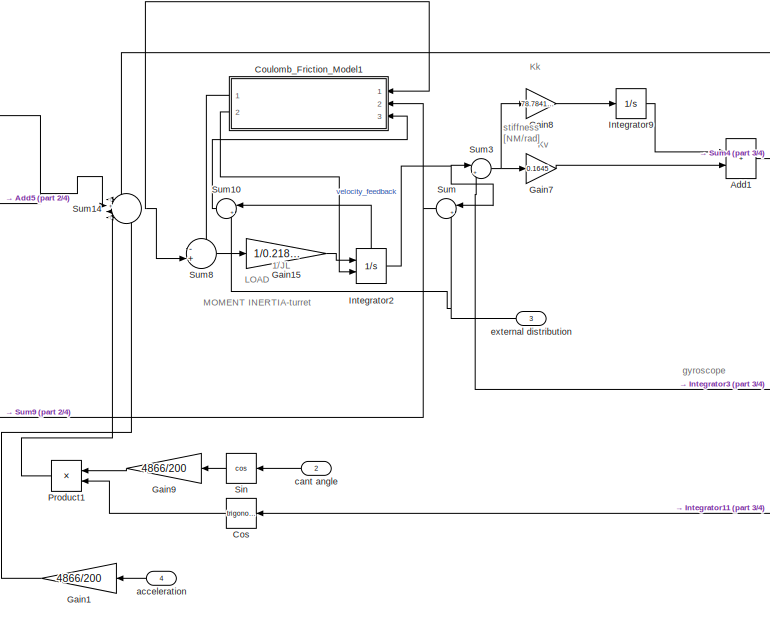
[diagram: linear plant traverse4 - part 1/4, top center region]
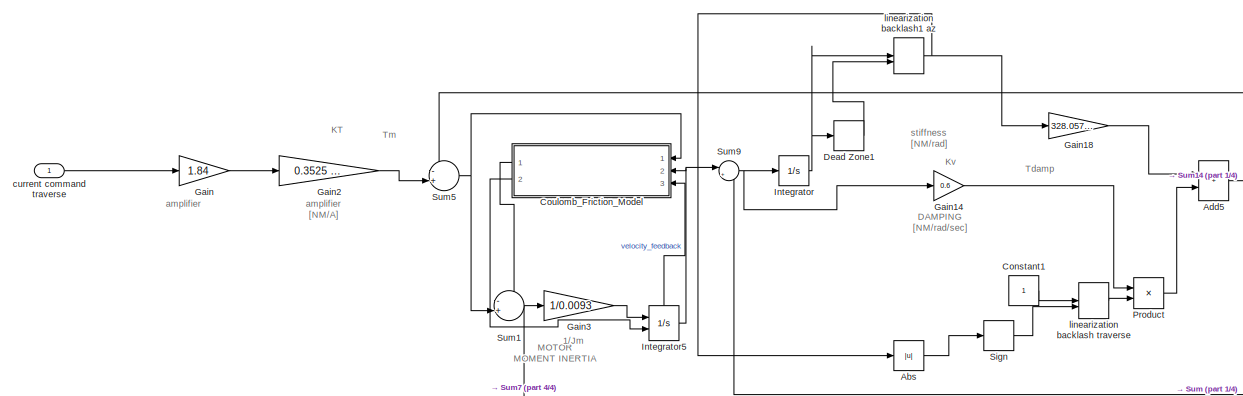
[diagram: linear plant traverse4 - part 2/4, top left region]
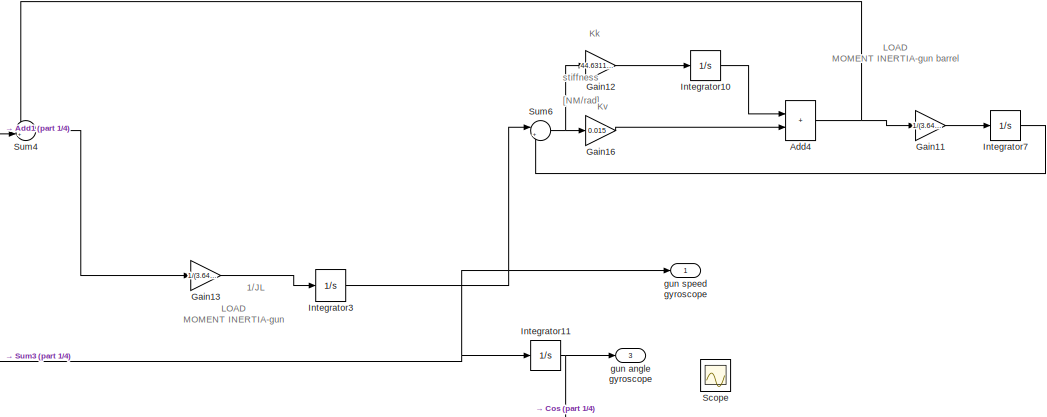
[diagram: linear plant traverse4 - part 3/4, top right region]
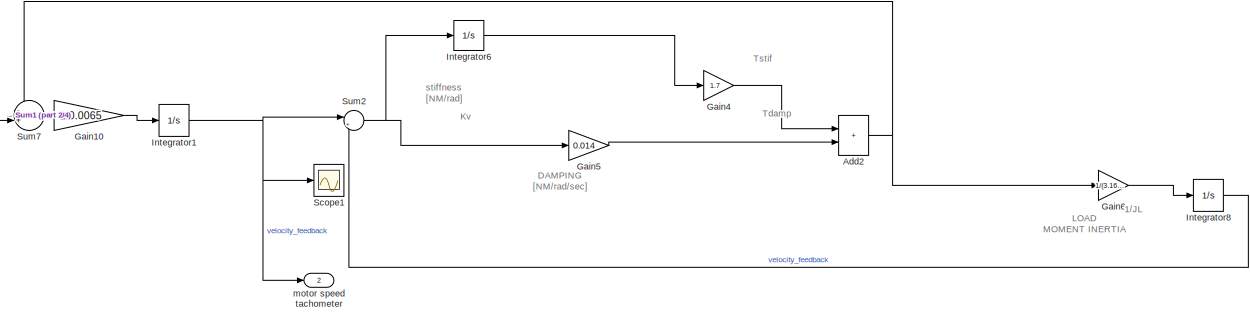
[diagram: linear plant traverse4 - part 4/4, bottom center region]
BLOCK [SubSystem] linear plant traverse4
  Ports = [4, 3]
  RequestExecContextInheritance = off
BLOCK [Abs] linear plant traverse4/Abs
  SaturateOnIntegerOverflow = off
BLOCK [Sum] linear plant traverse4/Add1
  IconShape = rectangular
  Ports = [2, 1]
BLOCK [Sum] linear plant traverse4/Add2
  IconShape = rectangular
  Ports = [2, 1]
BLOCK [Sum] linear plant traverse4/Add4
  IconShape = rectangular
  Ports = [2, 1]
BLOCK [Sum] linear plant traverse4/Add5
  IconShape = rectangular
  Ports = [2, 1]
BLOCK [Constant] linear plant traverse4/Constant1
BLOCK [Trigonometry] linear plant traverse4/Cos
  Ports = [1, 1]
BLOCK [SubSystem] linear plant traverse4/Coulomb_Friction_Model
  NameLocation = top
  Ports = [3, 2]
  RequestExecContextInheritance = off
BLOCK [Abs] linear plant traverse4/Coulomb_Friction_Model/Abs2
  SaturateOnIntegerOverflow = off
  ZeroCross = off
BLOCK [Outport] linear plant traverse4/Coulomb_Friction_Model/Friction_Torque
BLOCK [Gain] linear plant traverse4/Coulomb_Friction_Model/Gain
  Gain = 1.1
BLOCK [Gain] linear plant traverse4/Coulomb_Friction_Model/Gain1
BLOCK [HitCross] linear plant traverse4/Coulomb_Friction_Model/Hit Crossing
  Ports = [1, 1]
  ZeroCross = off
BLOCK [MinMax] linear plant traverse4/Coulomb_Friction_Model/MinMax
  Inputs = 2
  Ports = [2, 1]
BLOCK [Product] linear plant traverse4/Coulomb_Friction_Model/Product1
  Ports = [2, 1]
  RndMeth = Zero
BLOCK [Product] linear plant traverse4/Coulomb_Friction_Model/Product2
  Ports = [2, 1]
  RndMeth = Zero
BLOCK [Signum] linear plant traverse4/Coulomb_Friction_Model/Sign1
  ZeroCross = off
BLOCK [Signum] linear plant traverse4/Coulomb_Friction_Model/Sign2
  ZeroCross = off
BLOCK [Constant] linear plant traverse4/Coulomb_Friction_Model/Slip_T_friction
  Value = fric_gear_motor_traverse
BLOCK [Constant] linear plant traverse4/Coulomb_Friction_Model/Stick_T_friction
  Value = fric_gear_motor_traverse
BLOCK [Switch] linear plant traverse4/Coulomb_Friction_Model/Sw6
  Threshold = 0.5
  ZeroCross = off
BLOCK [Inport] linear plant traverse4/Coulomb_Friction_Model/Torque
BLOCK [Outport] linear plant traverse4/Coulomb_Friction_Model/reset velocity
  Port = 2
BLOCK [Inport] linear plant traverse4/Coulomb_Friction_Model/velocity
  Port = 2
BLOCK [Inport] linear plant traverse4/Coulomb_Friction_Model/velocity state
  Port = 3
BLOCK [SubSystem] linear plant traverse4/Coulomb_Friction_Model1
  NameLocation = top
  Ports = [3, 2]
  RequestExecContextInheritance = off
BLOCK [Abs] linear plant traverse4/Coulomb_Friction_Model1/Abs2
  SaturateOnIntegerOverflow = off
  ZeroCross = off
BLOCK [Outport] linear plant traverse4/Coulomb_Friction_Model1/Friction_Torque
BLOCK [Gain] linear plant traverse4/Coulomb_Friction_Model1/Gain
  Gain = 1.1
BLOCK [Gain] linear plant traverse4/Coulomb_Friction_Model1/Gain1
BLOCK [HitCross] linear plant traverse4/Coulomb_Friction_Model1/Hit Crossing
  Ports = [1, 1]
  ZeroCross = off
BLOCK [MinMax] linear plant traverse4/Coulomb_Friction_Model1/MinMax
  Inputs = 2
  Ports = [2, 1]
BLOCK [Product] linear plant traverse4/Coulomb_Friction_Model1/Product1
  Ports = [2, 1]
  RndMeth = Zero
BLOCK [Product] linear plant traverse4/Coulomb_Friction_Model1/Product2
  Ports = [2, 1]
  RndMeth = Zero
BLOCK [Signum] linear plant traverse4/Coulomb_Friction_Model1/Sign1
  ZeroCross = off
BLOCK [Signum] linear plant traverse4/Coulomb_Friction_Model1/Sign2
  ZeroCross = off
BLOCK [Constant] linear plant traverse4/Coulomb_Friction_Model1/Slip_T_friction
  SampleTime = 0
  Value = fric_gear_turrent_gun_traverse
BLOCK [Constant] linear plant traverse4/Coulomb_Friction_Model1/Stick_T_friction
  SampleTime = 0
  Value = fric_gear_turrent_gun_traverse
BLOCK [Switch] linear plant traverse4/Coulomb_Friction_Model1/Sw6
  Threshold = 0.5
  ZeroCross = off
BLOCK [Inport] linear plant traverse4/Coulomb_Friction_Model1/Torque
BLOCK [Outport] linear plant traverse4/Coulomb_Friction_Model1/reset velocity
  Port = 2
BLOCK [Inport] linear plant traverse4/Coulomb_Friction_Model1/velocity
  Port = 2
BLOCK [Inport] linear plant traverse4/Coulomb_Friction_Model1/velocity state
  Port = 3
BLOCK [DeadZone] linear plant traverse4/Dead Zone1
  LowerValue = -0.07*10^-3
  SaturateOnIntegerOverflow = off
  UpperValue = 0.07*10^-3
  ZeroCross = off
BLOCK [Gain] linear plant traverse4/Gain
  Gain = 1.84
BLOCK [Gain] linear plant traverse4/Gain1
  Gain = 4866/200
BLOCK [Gain] linear plant traverse4/Gain10
  Gain = 1/0.0065
BLOCK [Gain] linear plant traverse4/Gain11
  Gain = 1/(3.649668334*10^-3)
BLOCK [Gain] linear plant traverse4/Gain12
  Gain = 44.63119054
BLOCK [Gain] linear plant traverse4/Gain13
  Gain = 1/(3.649668334*10^-3)
BLOCK [Gain] linear plant traverse4/Gain14
  Gain = 0.6
BLOCK [Gain] linear plant traverse4/Gain15
  Gain = 1/0.2189801
BLOCK [Gain] linear plant traverse4/Gain16
  Gain = 0.015
BLOCK [Gain] linear plant traverse4/Gain18
  Gain = 328.0575777
BLOCK [Gain] linear plant traverse4/Gain2
  Gain = 0.3525 /sqrt(3)
BLOCK [Gain] linear plant traverse4/Gain3
  Gain = 1/0.0093
BLOCK [Gain] linear plant traverse4/Gain4
  Gain = 1.7
BLOCK [Gain] linear plant traverse4/Gain5
  Gain = 0.014
BLOCK [Gain] linear plant traverse4/Gain6
  Gain = 1/(3.166864961*10^-3)
BLOCK [Gain] linear plant traverse4/Gain7
  Gain = 0.1645
BLOCK [Gain] linear plant traverse4/Gain8
  Gain = 78.78413144
BLOCK [Gain] linear plant traverse4/Gain9
  Gain = 4866/200
BLOCK [Integrator] linear plant traverse4/Integrator
  Ports = [1, 1]
BLOCK [Integrator] linear plant traverse4/Integrator1
  Ports = [1, 1]
  ZeroCross = off
BLOCK [Integrator] linear plant traverse4/Integrator10
  Ports = [1, 1]
BLOCK [Integrator] linear plant traverse4/Integrator11
  Ports = [1, 1]
BLOCK [Integrator] linear plant traverse4/Integrator2
  ExternalReset = rising
  Ports = [2, 1, 0, 0, 1]
  ShowStatePort = on
  ZeroCross = off
BLOCK [Integrator] linear plant traverse4/Integrator3
  Ports = [1, 1]
  ZeroCross = off
BLOCK [Integrator] linear plant traverse4/Integrator5
  ExternalReset = rising
  Ports = [2, 1, 0, 0, 1]
  ShowStatePort = on
  ZeroCross = off
BLOCK [Integrator] linear plant traverse4/Integrator6
  Ports = [1, 1]
BLOCK [Integrator] linear plant traverse4/Integrator7
  Ports = [1, 1]
BLOCK [Integrator] linear plant traverse4/Integrator8
  Ports = [1, 1]
  ZeroCross = off
BLOCK [Integrator] linear plant traverse4/Integrator9
  Ports = [1, 1]
BLOCK [Product] linear plant traverse4/Product
  Ports = [2, 1]
BLOCK [Product] linear plant traverse4/Product1
  Ports = [2, 1]
BLOCK [Scope] linear plant traverse4/Scope
  Floating = off
  NumInputPorts = 1
  Ports = [1]
BLOCK [Scope] linear plant traverse4/Scope1
  Floating = off
  NumInputPorts = 1
  Ports = [1]
  ScopeSpecificationString = Simulink.scopes.TimeScopeBlockCfg('CurrentConfiguration', extmgr.ConfigurationSet(extmgr.Configuration('Core','General UI',true),extmgr.Configuration('Core','Source UI',true),extmgr.Configuration('Sources','WiredSimulink',true,'DataLoggingVariableName','ScopeData1'),extmgr.Configuration('Visuals','Time Domain',true,'SerializedDisplays',{struct('MinYLimReal','-2.79582','MaxYLimReal','2.53871','YLab...<+1376ch>
BLOCK [Signum] linear plant traverse4/Sign
BLOCK [Trigonometry] linear plant traverse4/Sin
  Operator = cos
  Ports = [1, 1]
BLOCK [Sum] linear plant traverse4/Sum
  Inputs = |+-
  Ports = [2, 1]
BLOCK [Sum] linear plant traverse4/Sum1
  Inputs = -+|
  Ports = [2, 1]
  SaturateOnIntegerOverflow = on
BLOCK [Sum] linear plant traverse4/Sum10
  Inputs = |+-
  Ports = [2, 1]
BLOCK [Sum] linear plant traverse4/Sum14
  Inputs = -+|--
  Ports = [4, 1]
  SaturateOnIntegerOverflow = on
BLOCK [Sum] linear plant traverse4/Sum2
  Inputs = |+-
  Ports = [2, 1]
BLOCK [Sum] linear plant traverse4/Sum3
  Inputs = |+-
  Ports = [2, 1]
BLOCK [Sum] linear plant traverse4/Sum4
  Inputs = -+|
  Ports = [2, 1]
BLOCK [Sum] linear plant traverse4/Sum5
  Inputs = -+|
  Ports = [2, 1]
BLOCK [Sum] linear plant traverse4/Sum6
  Inputs = |+-
  Ports = [2, 1]
BLOCK [Sum] linear plant traverse4/Sum7
  Inputs = -+|
  Ports = [2, 1]
  SaturateOnIntegerOverflow = on
BLOCK [Sum] linear plant traverse4/Sum8
  Inputs = -+|
  Ports = [2, 1]
  SaturateOnIntegerOverflow = on
BLOCK [Sum] linear plant traverse4/Sum9
  Inputs = |+-
  Ports = [2, 1]
BLOCK [Inport] linear plant traverse4/acceleration
  Port = 4
BLOCK [Inport] linear plant traverse4/cant angle
  Port = 2
BLOCK [Inport] linear plant traverse4/current command traverse
BLOCK [Inport] linear plant traverse4/external distribution
  Port = 3
BLOCK [Outport] linear plant traverse4/gun angle gyroscope 
  Port = 3
BLOCK [Outport] linear plant traverse4/gun speed gyroscope
BLOCK [ManualSwitch] linear plant traverse4/linearization backlash traverse
  CurrentSetting = 0
BLOCK [ManualSwitch] linear plant traverse4/linearization backlash1 az
  CurrentSetting = 0
BLOCK [Outport] linear plant traverse4/motor speed tachometer
  Port = 2
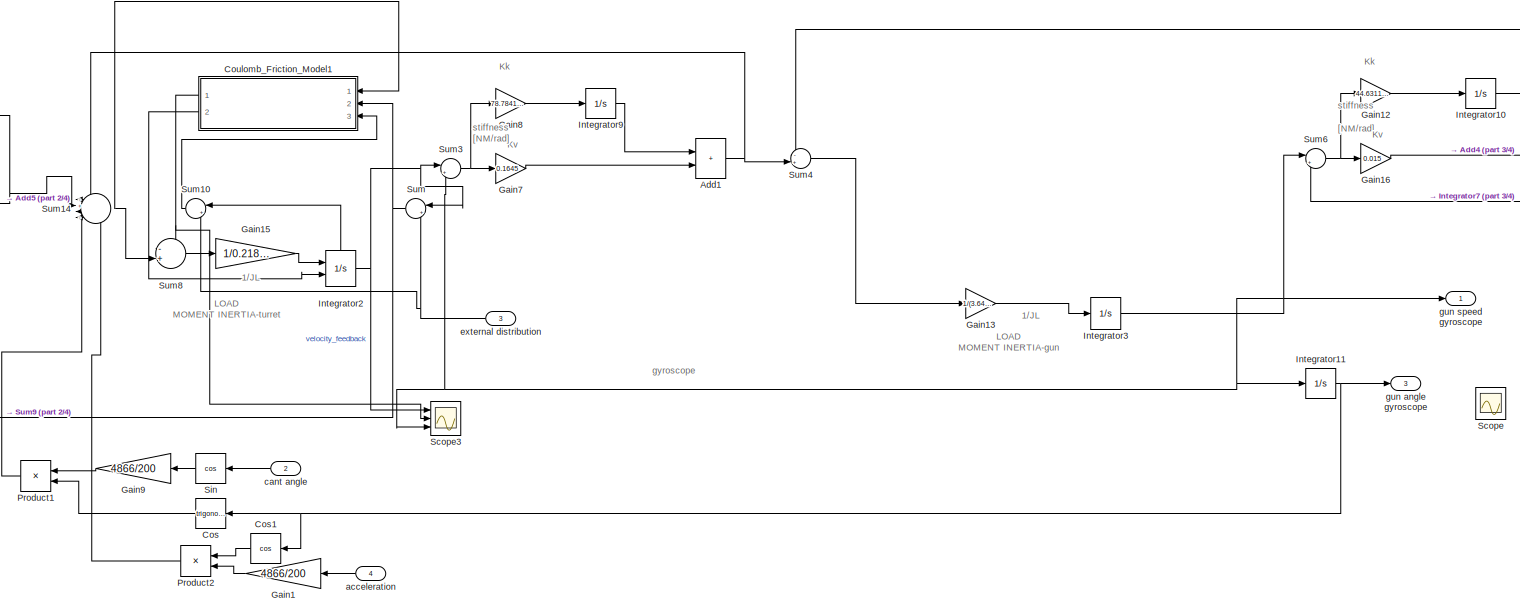
[diagram: linear plant traverse5 - part 1/4, top center region]
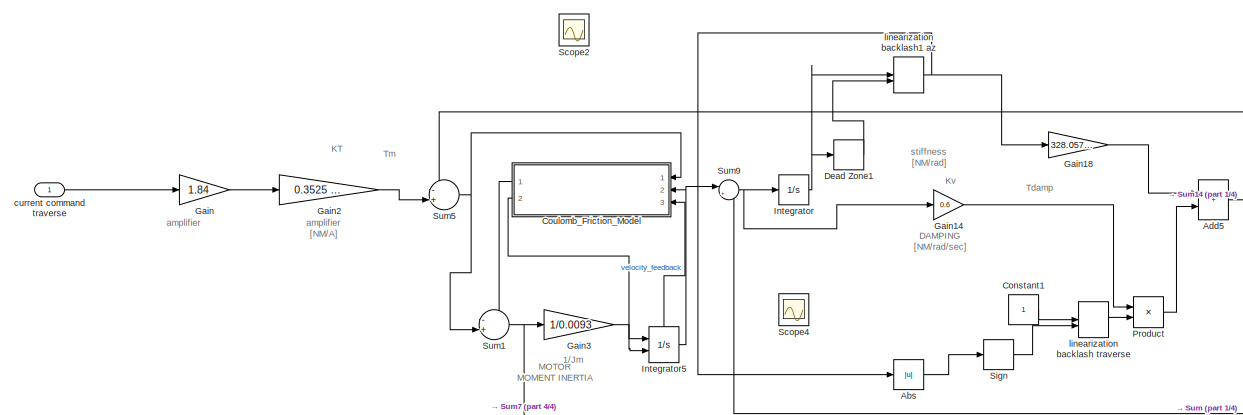
[diagram: linear plant traverse5 - part 2/4, top left region]
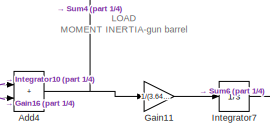
[diagram: linear plant traverse5 - part 3/4, top right region]
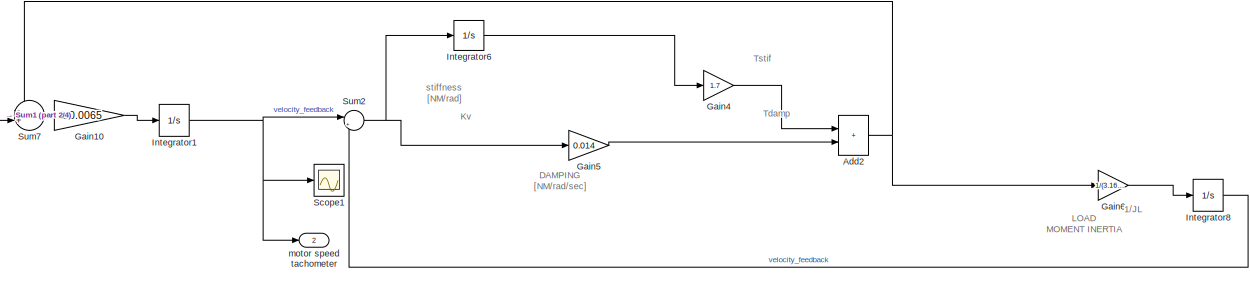
[diagram: linear plant traverse5 - part 4/4, bottom center region]
BLOCK [SubSystem] linear plant traverse5
  Ports = [4, 3]
  RequestExecContextInheritance = off
BLOCK [Abs] linear plant traverse5/Abs
  SaturateOnIntegerOverflow = off
BLOCK [Sum] linear plant traverse5/Add1
  IconShape = rectangular
  Ports = [2, 1]
BLOCK [Sum] linear plant traverse5/Add2
  IconShape = rectangular
  Ports = [2, 1]
BLOCK [Sum] linear plant traverse5/Add4
  IconShape = rectangular
  Ports = [2, 1]
BLOCK [Sum] linear plant traverse5/Add5
  IconShape = rectangular
  Ports = [2, 1]
BLOCK [Constant] linear plant traverse5/Constant1
BLOCK [Trigonometry] linear plant traverse5/Cos
  Ports = [1, 1]
BLOCK [Trigonometry] linear plant traverse5/Cos1
  Operator = cos
  Ports = [1, 1]
BLOCK [SubSystem] linear plant traverse5/Coulomb_Friction_Model
  NameLocation = top
  Ports = [3, 2]
  RequestExecContextInheritance = off
BLOCK [Abs] linear plant traverse5/Coulomb_Friction_Model/Abs2
  SaturateOnIntegerOverflow = off
  ZeroCross = off
BLOCK [Outport] linear plant traverse5/Coulomb_Friction_Model/Friction_Torque
BLOCK [Gain] linear plant traverse5/Coulomb_Friction_Model/Gain
  Gain = 1.1
BLOCK [Gain] linear plant traverse5/Coulomb_Friction_Model/Gain1
BLOCK [Gain] linear plant traverse5/Coulomb_Friction_Model/Gain2
  Gain = 100
BLOCK [Gain] linear plant traverse5/Coulomb_Friction_Model/Gain3
  Gain = 100
BLOCK [HitCross] linear plant traverse5/Coulomb_Friction_Model/Hit Crossing
  Ports = [1, 1]
  ZeroCross = off
BLOCK [MinMax] linear plant traverse5/Coulomb_Friction_Model/MinMax
  Inputs = 2
  Ports = [2, 1]
BLOCK [Product] linear plant traverse5/Coulomb_Friction_Model/Product1
  Ports = [2, 1]
  RndMeth = Zero
BLOCK [Product] linear plant traverse5/Coulomb_Friction_Model/Product2
  Ports = [2, 1]
  RndMeth = Zero
BLOCK [Signum] linear plant traverse5/Coulomb_Friction_Model/Sign1
  ZeroCross = off
BLOCK [Signum] linear plant traverse5/Coulomb_Friction_Model/Sign2
  ZeroCross = off
BLOCK [Constant] linear plant traverse5/Coulomb_Friction_Model/Slip_T_friction
  Value = fric_gear_motor_traverse
BLOCK [Constant] linear plant traverse5/Coulomb_Friction_Model/Stick_T_friction
  Value = fric_gear_motor_traverse
BLOCK [Switch] linear plant traverse5/Coulomb_Friction_Model/Sw6
  Threshold = 0.5
  ZeroCross = off
BLOCK [Trigonometry] linear plant traverse5/Coulomb_Friction_Model/Tanh
  Operator = tanh
  Ports = [1, 1]
BLOCK [Trigonometry] linear plant traverse5/Coulomb_Friction_Model/Tanh1
  Operator = tanh
  Ports = [1, 1]
BLOCK [Inport] linear plant traverse5/Coulomb_Friction_Model/Torque
BLOCK [Outport] linear plant traverse5/Coulomb_Friction_Model/reset velocity
  Port = 2
BLOCK [Inport] linear plant traverse5/Coulomb_Friction_Model/velocity
  Port = 2
BLOCK [Inport] linear plant traverse5/Coulomb_Friction_Model/velocity state
  Port = 3
BLOCK [SubSystem] linear plant traverse5/Coulomb_Friction_Model1
  NameLocation = top
  Ports = [3, 2]
  RequestExecContextInheritance = off
BLOCK [Abs] linear plant traverse5/Coulomb_Friction_Model1/Abs2
  SaturateOnIntegerOverflow = off
  ZeroCross = off
BLOCK [Outport] linear plant traverse5/Coulomb_Friction_Model1/Friction_Torque
BLOCK [Gain] linear plant traverse5/Coulomb_Friction_Model1/Gain
  Gain = 1.1
BLOCK [Gain] linear plant traverse5/Coulomb_Friction_Model1/Gain1
BLOCK [Gain] linear plant traverse5/Coulomb_Friction_Model1/Gain2
  Gain = 100
BLOCK [Gain] linear plant traverse5/Coulomb_Friction_Model1/Gain3
  Gain = 100
BLOCK [HitCross] linear plant traverse5/Coulomb_Friction_Model1/Hit Crossing
  Ports = [1, 1]
  ZeroCross = off
BLOCK [MinMax] linear plant traverse5/Coulomb_Friction_Model1/MinMax
  Inputs = 2
  Ports = [2, 1]
BLOCK [Product] linear plant traverse5/Coulomb_Friction_Model1/Product1
  Ports = [2, 1]
  RndMeth = Zero
BLOCK [Product] linear plant traverse5/Coulomb_Friction_Model1/Product2
  Ports = [2, 1]
  RndMeth = Zero
BLOCK [Signum] linear plant traverse5/Coulomb_Friction_Model1/Sign1
  ZeroCross = off
BLOCK [Signum] linear plant traverse5/Coulomb_Friction_Model1/Sign2
  ZeroCross = off
BLOCK [Constant] linear plant traverse5/Coulomb_Friction_Model1/Slip_T_friction
  SampleTime = 0
  Value = fric_gear_turrent_gun_traverse
BLOCK [Constant] linear plant traverse5/Coulomb_Friction_Model1/Stick_T_friction
  SampleTime = 0
  Value = fric_gear_turrent_gun_traverse
BLOCK [Switch] linear plant traverse5/Coulomb_Friction_Model1/Sw6
  Threshold = 0.5
  ZeroCross = off
BLOCK [Trigonometry] linear plant traverse5/Coulomb_Friction_Model1/Tanh
  Operator = tanh
  Ports = [1, 1]
BLOCK [Trigonometry] linear plant traverse5/Coulomb_Friction_Model1/Tanh1
  Operator = tanh
  Ports = [1, 1]
BLOCK [Inport] linear plant traverse5/Coulomb_Friction_Model1/Torque
BLOCK [Outport] linear plant traverse5/Coulomb_Friction_Model1/reset velocity
  Port = 2
BLOCK [Inport] linear plant traverse5/Coulomb_Friction_Model1/velocity
  Port = 2
BLOCK [Inport] linear plant traverse5/Coulomb_Friction_Model1/velocity state
  Port = 3
BLOCK [DeadZone] linear plant traverse5/Dead Zone1
  LowerValue = -0.07*10^-3
  SaturateOnIntegerOverflow = off
  UpperValue = 0.07*10^-3
  ZeroCross = off
BLOCK [Gain] linear plant traverse5/Gain
  Gain = 1.84
BLOCK [Gain] linear plant traverse5/Gain1
  Gain = 4866/200
BLOCK [Gain] linear plant traverse5/Gain10
  Gain = 1/0.0065
BLOCK [Gain] linear plant traverse5/Gain11
  Gain = 1/(3.649668334*10^-3)
BLOCK [Gain] linear plant traverse5/Gain12
  Gain = 44.63119054
BLOCK [Gain] linear plant traverse5/Gain13
  Gain = 1/(3.649668334*10^-3)
BLOCK [Gain] linear plant traverse5/Gain14
  Gain = 0.6
BLOCK [Gain] linear plant traverse5/Gain15
  Gain = 1/0.2189801
BLOCK [Gain] linear plant traverse5/Gain16
  Gain = 0.015
BLOCK [Gain] linear plant traverse5/Gain18
  Gain = 328.0575777
BLOCK [Gain] linear plant traverse5/Gain2
  Gain = 0.3525 /sqrt(3)
BLOCK [Gain] linear plant traverse5/Gain3
  Gain = 1/0.0093
BLOCK [Gain] linear plant traverse5/Gain4
  Gain = 1.7
BLOCK [Gain] linear plant traverse5/Gain5
  Gain = 0.014
BLOCK [Gain] linear plant traverse5/Gain6
  Gain = 1/(3.166864961*10^-3)
BLOCK [Gain] linear plant traverse5/Gain7
  Gain = 0.1645
BLOCK [Gain] linear plant traverse5/Gain8
  Gain = 78.78413144
BLOCK [Gain] linear plant traverse5/Gain9
  Gain = 4866/200
BLOCK [Integrator] linear plant traverse5/Integrator
  Ports = [1, 1]
BLOCK [Integrator] linear plant traverse5/Integrator1
  Ports = [1, 1]
  ZeroCross = off
BLOCK [Integrator] linear plant traverse5/Integrator10
  Ports = [1, 1]
BLOCK [Integrator] linear plant traverse5/Integrator11
  Ports = [1, 1]
BLOCK [Integrator] linear plant traverse5/Integrator2
  ExternalReset = rising
  Ports = [2, 1, 0, 0, 1]
  ShowStatePort = on
  ZeroCross = off
BLOCK [Integrator] linear plant traverse5/Integrator3
  Ports = [1, 1]
  ZeroCross = off
BLOCK [Integrator] linear plant traverse5/Integrator5
  ExternalReset = rising
  Ports = [2, 1, 0, 0, 1]
  ShowStatePort = on
  ZeroCross = off
BLOCK [Integrator] linear plant traverse5/Integrator6
  Ports = [1, 1]
BLOCK [Integrator] linear plant traverse5/Integrator7
  Ports = [1, 1]
BLOCK [Integrator] linear plant traverse5/Integrator8
  Ports = [1, 1]
  ZeroCross = off
BLOCK [Integrator] linear plant traverse5/Integrator9
  Ports = [1, 1]
BLOCK [Product] linear plant traverse5/Product
  Ports = [2, 1]
BLOCK [Product] linear plant traverse5/Product1
  Ports = [2, 1]
BLOCK [Product] linear plant traverse5/Product2
  Ports = [2, 1]
BLOCK [Scope] linear plant traverse5/Scope
  Floating = off
  NumInputPorts = 1
  Ports = [1]
BLOCK [Scope] linear plant traverse5/Scope1
  Floating = off
  NumInputPorts = 1
  Ports = [1]
  ScopeSpecificationString = Simulink.scopes.TimeScopeBlockCfg('CurrentConfiguration', extmgr.ConfigurationSet(extmgr.Configuration('Core','General UI',true),extmgr.Configuration('Core','Source UI',true),extmgr.Configuration('Sources','WiredSimulink',true,'DataLoggingVariableName','ScopeData1'),extmgr.Configuration('Visuals','Time Domain',true,'SerializedDisplays',{struct('MinYLimReal','-2.79582','MaxYLimReal','2.53871','YLab...<+1376ch>
BLOCK [Scope] linear plant traverse5/Scope2
  Floating = off
  NumInputPorts = 1
  Ports = [1]
  ScopeSpecificationString = Simulink.scopes.TimeScopeBlockCfg('CurrentConfiguration', extmgr.ConfigurationSet(extmgr.Configuration('Core','General UI',true),extmgr.Configuration('Core','Source UI',true),extmgr.Configuration('Sources','WiredSimulink',true,'DataLoggingVariableName','ScopeData2'),extmgr.Configuration('Visuals','Time Domain',true,'SerializedDisplays',{struct('MinYLimReal','-1.00000','MaxYLimReal','1.00000','YLab...<+1578ch>
BLOCK [Scope] linear plant traverse5/Scope3
  Floating = off
  NumInputPorts = 3
  Ports = [3]
  ScopeSpecificationString = Simulink.scopes.TimeScopeBlockCfg('CurrentConfiguration', extmgr.ConfigurationSet(extmgr.Configuration('Core','General UI',true),extmgr.Configuration('Core','Source UI',true),extmgr.Configuration('Sources','WiredSimulink',true,'DataLoggingVariableName','ScopeData3'),extmgr.Configuration('Visuals','Time Domain',true,'SerializedDisplays',{struct('MinYLimReal','-0.03077','MaxYLimReal','0.0376','YLabe...<+2864ch>
BLOCK [Scope] linear plant traverse5/Scope4
  Floating = off
  NumInputPorts = 1
  Ports = [1]
  ScopeSpecificationString = Simulink.scopes.TimeScopeBlockCfg('CurrentConfiguration', extmgr.ConfigurationSet(extmgr.Configuration('Core','General UI',true),extmgr.Configuration('Core','Source UI',true),extmgr.Configuration('Sources','WiredSimulink',true,'DataLoggingVariableName','ScopeData7'),extmgr.Configuration('Visuals','Time Domain',true,'SerializedDisplays',{struct('MinYLimReal','-0.02888','MaxYLimReal','0.02888','YLab...<+1503ch>
BLOCK [Signum] linear plant traverse5/Sign
BLOCK [Trigonometry] linear plant traverse5/Sin
  Operator = cos
  Ports = [1, 1]
BLOCK [Sum] linear plant traverse5/Sum
  Inputs = |+-
  Ports = [2, 1]
BLOCK [Sum] linear plant traverse5/Sum1
  Inputs = -+|
  Ports = [2, 1]
  SaturateOnIntegerOverflow = on
BLOCK [Sum] linear plant traverse5/Sum10
  Inputs = |+-
  Ports = [2, 1]
BLOCK [Sum] linear plant traverse5/Sum14
  Inputs = -+|--
  Ports = [4, 1]
  SaturateOnIntegerOverflow = on
BLOCK [Sum] linear plant traverse5/Sum2
  Inputs = |+-
  Ports = [2, 1]
BLOCK [Sum] linear plant traverse5/Sum3
  Inputs = |+-
  Ports = [2, 1]
BLOCK [Sum] linear plant traverse5/Sum4
  Inputs = -+|
  Ports = [2, 1]
BLOCK [Sum] linear plant traverse5/Sum5
  Inputs = -+|
  Ports = [2, 1]
BLOCK [Sum] linear plant traverse5/Sum6
  Inputs = |+-
  Ports = [2, 1]
BLOCK [Sum] linear plant traverse5/Sum7
  Inputs = -+|
  Ports = [2, 1]
  SaturateOnIntegerOverflow = on
BLOCK [Sum] linear plant traverse5/Sum8
  Inputs = -+|
  Ports = [2, 1]
  SaturateOnIntegerOverflow = on
BLOCK [Sum] linear plant traverse5/Sum9
  Inputs = |+-
  Ports = [2, 1]
BLOCK [Inport] linear plant traverse5/acceleration
  Port = 4
BLOCK [Inport] linear plant traverse5/cant angle
  Port = 2
BLOCK [Inport] linear plant traverse5/current command traverse
BLOCK [Inport] linear plant traverse5/external distribution
  Port = 3
BLOCK [Outport] linear plant traverse5/gun angle gyroscope 
  Port = 3
BLOCK [Outport] linear plant traverse5/gun speed gyroscope
BLOCK [ManualSwitch] linear plant traverse5/linearization backlash traverse
  CurrentSetting = 0
BLOCK [ManualSwitch] linear plant traverse5/linearization backlash1 az
  CurrentSetting = 0
BLOCK [Outport] linear plant traverse5/motor speed tachometer
  Port = 2
ANNOTATION (root): controller tacho
ANNOTATION (root): 1/J L
ANNOTATION (root): controller_gyro low velocity
ANNOTATION (root): controller_gyro
ANNOTATION (root): controller_taho low velocity
ANNOTATION (root): gyro
ANNOTATION (root): tachometer
ANNOTATION Subsystem: cancel zero from tachomete
ANNOTATION Subsystem: inverse model motor-load
ANNOTATION Subsystem: phase lead
ANNOTATION Subsystem: notch_filter
ANNOTATION Subsystem1: anti_notch
ANNOTATION Subsystem1: notch_filter
ANNOTATION Subsystem3: anti_notch
ANNOTATION Subsystem3: notch_filter
ANNOTATION Subsystem5: anti_notch
ANNOTATION Subsystem5: notch_filter
ANNOTATION Subsystem6: anti_notch
ANNOTATION Subsystem6: notch_filter
ANNOTATION Subsystem7: anti_notch
ANNOTATION Subsystem7: notch_filter
ANNOTATION Subsystem8: anti_notch
ANNOTATION Subsystem8: notch_filter
ANNOTATION linear plant traverse: 1/J m
ANNOTATION linear plant traverse: 1/J L
ANNOTATION linear plant traverse: K k
ANNOTATION linear plant traverse: K T
ANNOTATION linear plant traverse: LOAD MOMENT INERTIA- gun barrel
ANNOTATION linear plant traverse: T m
ANNOTATION linear plant traverse: T damp
ANNOTATION linear plant traverse: T stif
ANNOTATION linear plant traverse: K v
ANNOTATION linear plant traverse: LOAD MOMENT INERTIA- turret
ANNOTATION linear plant traverse: LOAD MOMENT INERTIA- gun
ANNOTATION linear plant traverse: gyroscope
ANNOTATION linear plant traverse: DAMPING [NM/rad/sec]
ANNOTATION linear plant traverse: LOAD MOMENT INERTIA
ANNOTATION linear plant traverse: MOTOR MOMENT INERTIA
ANNOTATION linear plant traverse: amplifier
ANNOTATION linear plant traverse: amplifier [NM/A]
ANNOTATION linear plant traverse: static_acceleration
ANNOTATION linear plant traverse: stiffness [NM/rad]
ANNOTATION linear plant traverse1: T_unballanced static
ANNOTATION linear plant traverse1: 1/J m
ANNOTATION linear plant traverse1: 1/J L
ANNOTATION linear plant traverse1: K k
ANNOTATION linear plant traverse1: K T
ANNOTATION linear plant traverse1: LOAD MOMENT INERTIA- gun barrel
ANNOTATION linear plant traverse1: T m
ANNOTATION linear plant traverse1: T damp
ANNOTATION linear plant traverse1: T stif
ANNOTATION linear plant traverse1: K v
ANNOTATION linear plant traverse1: LOAD MOMENT INERTIA- turret
ANNOTATION linear plant traverse1: LOAD MOMENT INERTIA- gun
ANNOTATION linear plant traverse1: gyroscope
ANNOTATION linear plant traverse1: DAMPING [NM/rad/sec]
ANNOTATION linear plant traverse1: LOAD MOMENT INERTIA
ANNOTATION linear plant traverse1: MOTOR MOMENT INERTIA
ANNOTATION linear plant traverse1: amplifier
ANNOTATION linear plant traverse1: amplifier [NM/A]
ANNOTATION linear plant traverse1: stiffness [NM/rad]
ANNOTATION linear plant traverse2: 1/J m
ANNOTATION linear plant traverse2: 1/J L
ANNOTATION linear plant traverse2: K k
ANNOTATION linear plant traverse2: K T
ANNOTATION linear plant traverse2: LOAD MOMENT INERTIA- gun barrel
ANNOTATION linear plant traverse2: T m
ANNOTATION linear plant traverse2: T damp
ANNOTATION linear plant traverse2: T stif
ANNOTATION linear plant traverse2: K v
ANNOTATION linear plant traverse2: LOAD MOMENT INERTIA- turret
ANNOTATION linear plant traverse2: LOAD MOMENT INERTIA- gun
ANNOTATION linear plant traverse2: gyroscope
ANNOTATION linear plant traverse2: DAMPING [NM/rad/sec]
ANNOTATION linear plant traverse2: LOAD MOMENT INERTIA
ANNOTATION linear plant traverse2: MOTOR MOMENT INERTIA
ANNOTATION linear plant traverse2: amplifier
ANNOTATION linear plant traverse2: amplifier [NM/A]
ANNOTATION linear plant traverse2: static_acceleration
ANNOTATION linear plant traverse2: stiffness [NM/rad]
ANNOTATION linear plant traverse3: 1/J m
ANNOTATION linear plant traverse3: 1/J L
ANNOTATION linear plant traverse3: K k
ANNOTATION linear plant traverse3: K T
ANNOTATION linear plant traverse3: LOAD MOMENT INERTIA- gun barrel
ANNOTATION linear plant traverse3: T m
ANNOTATION linear plant traverse3: T damp
ANNOTATION linear plant traverse3: T stif
ANNOTATION linear plant traverse3: K v
ANNOTATION linear plant traverse3: LOAD MOMENT INERTIA- turret
ANNOTATION linear plant traverse3: LOAD MOMENT INERTIA- gun
ANNOTATION linear plant traverse3: gyroscope
ANNOTATION linear plant traverse3: DAMPING [NM/rad/sec]
ANNOTATION linear plant traverse3: LOAD MOMENT INERTIA
ANNOTATION linear plant traverse3: MOTOR MOMENT INERTIA
ANNOTATION linear plant traverse3: amplifier
ANNOTATION linear plant traverse3: amplifier [NM/A]
ANNOTATION linear plant traverse3: static_acceleration
ANNOTATION linear plant traverse3: stiffness [NM/rad]
ANNOTATION linear plant traverse4: 1/J m
ANNOTATION linear plant traverse4: 1/J L
ANNOTATION linear plant traverse4: K k
ANNOTATION linear plant traverse4: K T
ANNOTATION linear plant traverse4: LOAD MOMENT INERTIA- gun barrel
ANNOTATION linear plant traverse4: T m
ANNOTATION linear plant traverse4: T damp
ANNOTATION linear plant traverse4: T stif
ANNOTATION linear plant traverse4: K v
ANNOTATION linear plant traverse4: LOAD MOMENT INERTIA- turret
ANNOTATION linear plant traverse4: LOAD MOMENT INERTIA- gun
ANNOTATION linear plant traverse4: gyroscope
ANNOTATION linear plant traverse4: DAMPING [NM/rad/sec]
ANNOTATION linear plant traverse4: LOAD MOMENT INERTIA
ANNOTATION linear plant traverse4: MOTOR MOMENT INERTIA
ANNOTATION linear plant traverse4: amplifier
ANNOTATION linear plant traverse4: amplifier [NM/A]
ANNOTATION linear plant traverse4: stiffness [NM/rad]
ANNOTATION linear plant traverse5: 1/J m
ANNOTATION linear plant traverse5: 1/J L
ANNOTATION linear plant traverse5: K k
ANNOTATION linear plant traverse5: K T
ANNOTATION linear plant traverse5: LOAD MOMENT INERTIA- gun barrel
ANNOTATION linear plant traverse5: T m
ANNOTATION linear plant traverse5: T damp
ANNOTATION linear plant traverse5: T stif
ANNOTATION linear plant traverse5: K v
ANNOTATION linear plant traverse5: LOAD MOMENT INERTIA- turret
ANNOTATION linear plant traverse5: LOAD MOMENT INERTIA- gun
ANNOTATION linear plant traverse5: gyroscope
ANNOTATION linear plant traverse5: DAMPING [NM/rad/sec]
ANNOTATION linear plant traverse5: LOAD MOMENT INERTIA
ANNOTATION linear plant traverse5: MOTOR MOMENT INERTIA
ANNOTATION linear plant traverse5: amplifier
ANNOTATION linear plant traverse5: amplifier [NM/A]
ANNOTATION linear plant traverse5: stiffness [NM/rad]
LINE Constant1:1 -> Subsystem2:enable
LINE Constant:1 -> Sin:1
LINE Cos1:1 -> Gain35:1
LINE Cos2:1 -> Product2:1
LINE Cos:1 -> Product1:2
LINE From Workspace1:1 -> Gain1:1
NET From Workspace2:1 -> Gain20:1, Transfer Fcn2:1, Transfer Fcn9:1, linear plant traverse2:2, linear plant traverse4:4
LINE From Workspace3:1 -> Gain11:1
NET From Workspace4:1 -> Gain44:1, Gain46:1, Transfer Fcn4:1, linear plant traverse5:4
NET From Workspace5:1 -> Gain38:1, Transfer Fcn6:1
LINE From Workspace:1 -> Gain:1
NET From1:1 -> Gain17:1, Subsystem2:1
LINE From:1 -> Sum8:1
NET Gain11:1 -> Gain42:1, Gain50:1, Scope4:2, Transfer Fcn3:1, linear plant traverse5:3
LINE Gain12:1 -> Integrator2:1
NET Gain13:1 -> Gain24:1, Scope6:1
LINE Gain15:1 -> Gain16:1
LINE Gain16:1 -> Gain14:1
LINE Gain17:1 -> SpectrumInOut:1
LINE Gain18:1 -> SpectrumInOut:2
LINE Gain1:1 -> Transfer Fcn1:1
LINE Gain20:1 -> Scope3:1
LINE Gain21:1 -> Product1:1
LINE Gain22:1 -> Sum6:2
LINE Gain23:1 -> Gain22:1
LINE Gain24:1 -> Gain51:1
LINE Gain25:1 -> Tanh1:1
LINE Gain26:1 -> Gain40:1
LINE Gain28:1 -> Gain29:1
LINE Gain29:1 -> Gain27:1
LINE Gain2:1 -> Gain6:1
LINE Gain30:1 -> Gain31:1
LINE Gain31:1 -> Gain32:1
LINE Gain32:1 -> Gain34:1
LINE Gain33:1 -> Gain48:1
LINE Gain35:1 -> Gain37:1
LINE Gain36:1 -> Sum10:2
LINE Gain37:1 -> Gain36:1
LINE Gain38:1 -> Transfer Fcn5:1
LINE Gain39:1 -> Tanh:1
LINE Gain3:1 -> Gain4:1
LINE Gain40:1 -> Gain41:1
LINE Gain43:1 -> Gain45:1
NET Gain44:1 -> Gain12:1, Gain47:1
LINE Gain46:1 -> Product2:2
LINE Gain47:1 -> Gain26:1
LINE Gain48:1 -> Gain49:1
LINE Gain49:1 -> Sum11:1
LINE Gain4:1 -> Gain5:1
LINE Gain50:1 -> Sum16:1
LINE Gain51:1 -> Sum12:2
LINE Gain6:1 -> Gain7:1
LINE Gain7:1 -> Transfer Fcn7:1
LINE Gain8:1 -> Gain9:1
LINE Gain9:1 -> Gain10:1
NET Gain:1 -> Mux:1, Scope:2
LINE Integrator1:1 -> Scope5:1
NET Integrator:1 -> Mux:2, Scope:1
NET Manual Switch1:1 -> Scope1:1, linear plant traverse1:1
LINE Mux:1 -> Scope2:1
LINE Product1:1 -> Gain23:1
LINE Product2:1 -> Gain43:1
LINE Sign1:1 -> Gain3:1
LINE Sign2:1 -> Gain15:1
LINE Sin:1 -> Gain21:1
LINE Subsystem/Add2:1 -> Subsystem/Transfer Fcn:1
LINE Subsystem/Gain10:1 -> Subsystem/Integrator4:1
NET Subsystem/Gain9:1 -> Subsystem/Add2:2, Subsystem/Gain10:1
LINE Subsystem/In1:1 -> Subsystem/Gain9:1
LINE Subsystem/Integrator4:1 -> Subsystem/Add2:1
LINE Subsystem/Transfer Fcn1:1 -> Subsystem/Transfer Fcn4:1
LINE Subsystem/Transfer Fcn4:1 -> Subsystem/Transfer Fcn5:1
LINE Subsystem/Transfer Fcn5:1 -> Subsystem/Out1:1
LINE Subsystem/Transfer Fcn:1 -> Subsystem/Transfer Fcn1:1
LINE Subsystem1/Add3:1 -> Subsystem1/Transfer Fcn2:1
LINE Subsystem1/Gain11:1 -> Subsystem1/Integrator5:1
LINE Subsystem1/Gain12:1 -> Subsystem1/Gain:1
NET Subsystem1/Gain1:1 -> Subsystem1/Add3:2, Subsystem1/Gain11:1
LINE Subsystem1/Gain:1 -> Subsystem1/Transfer Fcn:1
NET Subsystem1/In1:1 -> Subsystem1/Gain12:1, Subsystem1/Gain1:1
LINE Subsystem1/Integrator5:1 -> Subsystem1/Add3:1
LINE Subsystem1/Transfer Fcn1:1 -> Subsystem1/Transfer Fcn3:1
LINE Subsystem1/Transfer Fcn2:1 -> Subsystem1/Transfer Fcn4:1
LINE Subsystem1/Transfer Fcn3:1 -> Subsystem1/Output:1
LINE Subsystem1/Transfer Fcn4:1 -> Subsystem1/Transfer Fcn6:1
LINE Subsystem1/Transfer Fcn6:1 -> Subsystem1/Transfer Fcn1:1
LINE Subsystem1/Transfer Fcn:1 -> Subsystem1/Add3:3
LINE Subsystem1:1 -> Manual Switch1:1
NET Subsystem2/Chirp Signal1:1 -> Subsystem2/Scope2:1, Subsystem2/gain 3:1
LINE Subsystem2/Input:1 -> Subsystem2/Mux2:2
LINE Subsystem2/Mux2:1 -> Subsystem2/TSABAD_out_log:1
NET Subsystem2/gain 3:1 -> Subsystem2/Mux2:1, Subsystem2/Output2:1
NET Subsystem2:1 -> Gain18:1, Goto3:1, Output2:1
LINE Subsystem3/Add3:1 -> Subsystem3/Transfer Fcn2:1
LINE Subsystem3/Gain11:1 -> Subsystem3/Integrator5:1
NET Subsystem3/Gain1:1 -> Subsystem3/Add3:2, Subsystem3/Gain11:1
LINE Subsystem3/In1:1 -> Subsystem3/Gain1:1
LINE Subsystem3/Integrator5:1 -> Subsystem3/Add3:1
LINE Subsystem3/Transfer Fcn1:1 -> Subsystem3/Transfer Fcn3:1
LINE Subsystem3/Transfer Fcn2:1 -> Subsystem3/Transfer Fcn4:1
LINE Subsystem3/Transfer Fcn3:1 -> Subsystem3/Output:1
LINE Subsystem3/Transfer Fcn4:1 -> Subsystem3/Transfer Fcn6:1
LINE Subsystem3/Transfer Fcn6:1 -> Subsystem3/Transfer Fcn1:1
LINE Subsystem4/Gain1:1 -> Subsystem4/Sum:2
LINE Subsystem4/Gain:1 -> Subsystem4/Transfer Fcn:1
NET Subsystem4/In1:1 -> Subsystem4/Gain1:1, Subsystem4/Gain:1
LINE Subsystem4/Sum:1 -> Subsystem4/Out1:1
LINE Subsystem4/Transfer Fcn:1 -> Subsystem4/Sum:1
LINE Subsystem5/Add3:1 -> Subsystem5/Transfer Fcn2:1
LINE Subsystem5/Gain11:1 -> Subsystem5/Integrator5:1
LINE Subsystem5/Gain12:1 -> Subsystem5/Gain:1
NET Subsystem5/Gain1:1 -> Subsystem5/Add3:2, Subsystem5/Gain11:1
LINE Subsystem5/Gain:1 -> Subsystem5/Transfer Fcn:1
NET Subsystem5/In1:1 -> Subsystem5/Gain12:1, Subsystem5/Gain1:1
LINE Subsystem5/Integrator5:1 -> Subsystem5/Add3:1
LINE Subsystem5/Transfer Fcn1:1 -> Subsystem5/Transfer Fcn3:1
LINE Subsystem5/Transfer Fcn2:1 -> Subsystem5/Transfer Fcn4:1
LINE Subsystem5/Transfer Fcn3:1 -> Subsystem5/Output:1
LINE Subsystem5/Transfer Fcn4:1 -> Subsystem5/Transfer Fcn6:1
LINE Subsystem5/Transfer Fcn6:1 -> Subsystem5/Transfer Fcn1:1
LINE Subsystem5/Transfer Fcn:1 -> Subsystem5/Add3:3
LINE Subsystem5:1 -> Sum4:2
LINE Subsystem6/Add3:1 -> Subsystem6/Transfer Fcn2:1
LINE Subsystem6/Gain11:1 -> Subsystem6/Integrator5:1
LINE Subsystem6/Gain12:1 -> Subsystem6/Gain:1
NET Subsystem6/Gain1:1 -> Subsystem6/Add3:2, Subsystem6/Gain11:1
LINE Subsystem6/Gain:1 -> Subsystem6/Transfer Fcn:1
NET Subsystem6/In1:1 -> Subsystem6/Gain12:1, Subsystem6/Gain1:1
LINE Subsystem6/Integrator5:1 -> Subsystem6/Add3:1
LINE Subsystem6/Transfer Fcn1:1 -> Subsystem6/Transfer Fcn3:1
LINE Subsystem6/Transfer Fcn2:1 -> Subsystem6/Transfer Fcn4:1
LINE Subsystem6/Transfer Fcn3:1 -> Subsystem6/Output:1
LINE Subsystem6/Transfer Fcn4:1 -> Subsystem6/Transfer Fcn6:1
LINE Subsystem6/Transfer Fcn6:1 -> Subsystem6/Transfer Fcn1:1
LINE Subsystem6/Transfer Fcn:1 -> Subsystem6/Add3:3
LINE Subsystem6:1 -> Sum3:2
LINE Subsystem7/Add3:1 -> Subsystem7/Transfer Fcn2:1
LINE Subsystem7/Gain11:1 -> Subsystem7/Integrator5:1
LINE Subsystem7/Gain12:1 -> Subsystem7/Gain:1
NET Subsystem7/Gain1:1 -> Subsystem7/Add3:2, Subsystem7/Gain11:1
LINE Subsystem7/Gain:1 -> Subsystem7/Transfer Fcn:1
NET Subsystem7/In1:1 -> Subsystem7/Gain12:1, Subsystem7/Gain1:1
LINE Subsystem7/Integrator5:1 -> Subsystem7/Add3:1
LINE Subsystem7/Transfer Fcn1:1 -> Subsystem7/Transfer Fcn3:1
LINE Subsystem7/Transfer Fcn2:1 -> Subsystem7/Transfer Fcn4:1
LINE Subsystem7/Transfer Fcn3:1 -> Subsystem7/Output:1
LINE Subsystem7/Transfer Fcn4:1 -> Subsystem7/Transfer Fcn6:1
LINE Subsystem7/Transfer Fcn6:1 -> Subsystem7/Transfer Fcn1:1
LINE Subsystem7/Transfer Fcn:1 -> Subsystem7/Add3:3
LINE Subsystem7:1 -> Sum15:2
LINE Subsystem8/Add3:1 -> Subsystem8/Transfer Fcn2:1
LINE Subsystem8/Gain11:1 -> Subsystem8/Integrator5:1
LINE Subsystem8/Gain12:1 -> Subsystem8/Gain:1
NET Subsystem8/Gain1:1 -> Subsystem8/Add3:2, Subsystem8/Gain11:1
LINE Subsystem8/Gain:1 -> Subsystem8/Transfer Fcn:1
NET Subsystem8/In1:1 -> Subsystem8/Gain12:1, Subsystem8/Gain1:1
LINE Subsystem8/Integrator5:1 -> Subsystem8/Add3:1
LINE Subsystem8/Transfer Fcn1:1 -> Subsystem8/Transfer Fcn3:1
LINE Subsystem8/Transfer Fcn2:1 -> Subsystem8/Transfer Fcn4:1
LINE Subsystem8/Transfer Fcn3:1 -> Subsystem8/Output:1
LINE Subsystem8/Transfer Fcn4:1 -> Subsystem8/Transfer Fcn6:1
LINE Subsystem8/Transfer Fcn6:1 -> Subsystem8/Transfer Fcn1:1
LINE Subsystem8:1 -> Sum13:1
LINE Subsystem:1 -> Manual Switch1:2
LINE Sum10:1 -> Sum11:2
LINE Sum11:1 -> Sum:1
LINE Sum12:1 -> Sum10:1
LINE Sum13:1 -> Sum12:1
LINE Sum14:1 -> Subsystem7:1
LINE Sum16:1 -> Gain39:1
LINE Sum1:1 -> Subsystem6:1
LINE Sum2:1 -> Subsystem5:1
LINE Sum3:1 -> linear plant traverse2:1
LINE Sum4:1 -> Sum5:1
LINE Sum5:1 -> Sum6:1
LINE Sum6:1 -> Sum7:1
LINE Sum7:1 -> linear plant traverse4:1
NET Sum8:1 -> Subsystem1:1, Subsystem3:1, Subsystem4:1, Subsystem:1
LINE Sum9:1 -> Subsystem8:1
LINE Sum:1 -> linear plant traverse5:1
LINE Tanh1:1 -> Gain28:1
LINE Tanh:1 -> Gain13:1
LINE Transfer Fcn1:1 -> Gain8:1
LINE Transfer Fcn2:1 -> Sum5:2
LINE Transfer Fcn3:1 -> Gain33:1
LINE Transfer Fcn4:1 -> Sum13:2
LINE Transfer Fcn5:1 -> Gain30:1
LINE Transfer Fcn6:1 -> Sum15:1
LINE Transfer Fcn8:1 -> Sign2:1
LINE Transfer Fcn9:1 -> Sum3:1
LINE Transfer Fcn:1 -> Gain2:1
NET linear plant traverse/Add1:1 -> linear plant traverse/Sum14:1, linear plant traverse/Sum4:2
NET linear plant traverse/Add2:1 -> linear plant traverse/Sum12:2, linear plant traverse/Sum7:1
NET linear plant traverse/Add4:1 -> linear plant traverse/Gain17:1, linear plant traverse/Sum4:1
NET linear plant traverse/Add5:1 -> linear plant traverse/Sum14:2, linear plant traverse/Sum5:1
LINE linear plant traverse/Gain10:1 -> linear plant traverse/Integrator1:1
LINE linear plant traverse/Gain13:1 -> linear plant traverse/Add4:2
LINE linear plant traverse/Gain14:1 -> linear plant traverse/Add5:2
LINE linear plant traverse/Gain15:1 -> linear plant traverse/Integrator2:1
LINE linear plant traverse/Gain16:1 -> linear plant traverse/Integrator10:1
LINE linear plant traverse/Gain17:1 -> linear plant traverse/Integrator7:1
LINE linear plant traverse/Gain18:1 -> linear plant traverse/Integrator:1
LINE linear plant traverse/Gain1:1 -> linear plant traverse/Add1:2
LINE linear plant traverse/Gain2:1 -> linear plant traverse/Sum5:2
LINE linear plant traverse/Gain3:1 -> linear plant traverse/Integrator5:1
LINE linear plant traverse/Gain4:1 -> linear plant traverse/Integrator6:1
LINE linear plant traverse/Gain5:1 -> linear plant traverse/Add2:2
LINE linear plant traverse/Gain6:1 -> linear plant traverse/Integrator8:1
LINE linear plant traverse/Gain7:1 -> linear plant traverse/Integrator9:1
LINE linear plant traverse/Gain8:1 -> linear plant traverse/Integrator3:1
LINE linear plant traverse/Gain9:1 -> linear plant traverse/Sum14:3
LINE linear plant traverse/Gain:1 -> linear plant traverse/Gain2:1
LINE linear plant traverse/In1:1 -> linear plant traverse/Gain9:1
LINE linear plant traverse/Integrator10:1 -> linear plant traverse/Add4:1
NET linear plant traverse/Integrator1:1 -> linear plant traverse/Sum2:1, linear plant traverse/motor speed tachometer:1
NET linear plant traverse/Integrator2:1 -> linear plant traverse/Sum3:1, linear plant traverse/Sum9:2
NET linear plant traverse/Integrator3:1 -> linear plant traverse/Scope:1, linear plant traverse/Sum3:2, linear plant traverse/Sum6:1, linear plant traverse/gun speed gyroscope:1
LINE linear plant traverse/Integrator5:1 -> linear plant traverse/Sum9:1
LINE linear plant traverse/Integrator6:1 -> linear plant traverse/Add2:1
LINE linear plant traverse/Integrator7:1 -> linear plant traverse/Sum6:2
LINE linear plant traverse/Integrator8:1 -> linear plant traverse/Sum2:2
LINE linear plant traverse/Integrator9:1 -> linear plant traverse/Add1:1
LINE linear plant traverse/Integrator:1 -> linear plant traverse/Add5:1
LINE linear plant traverse/Sum10:1 -> linear plant traverse/Gain8:1
LINE linear plant traverse/Sum12:1 -> linear plant traverse/Gain6:1
LINE linear plant traverse/Sum14:1 -> linear plant traverse/Gain15:1
LINE linear plant traverse/Sum1:1 -> linear plant traverse/Gain3:1
NET linear plant traverse/Sum2:1 -> linear plant traverse/Gain4:1, linear plant traverse/Gain5:1
NET linear plant traverse/Sum3:1 -> linear plant traverse/Gain1:1, linear plant traverse/Gain7:1
LINE linear plant traverse/Sum4:1 -> linear plant traverse/Sum10:2
NET linear plant traverse/Sum5:1 -> linear plant traverse/Sum1:2, linear plant traverse/Sum7:2
NET linear plant traverse/Sum6:1 -> linear plant traverse/Gain13:1, linear plant traverse/Gain16:1
LINE linear plant traverse/Sum7:1 -> linear plant traverse/Gain10:1
NET linear plant traverse/Sum9:1 -> linear plant traverse/Gain14:1, linear plant traverse/Gain18:1
LINE linear plant traverse/current command traverse:1 -> linear plant traverse/Gain:1
LINE linear plant traverse/external disturbance:1 -> linear plant traverse/Sum9:3
LINE linear plant traverse1/Abs:1 -> linear plant traverse1/Sign:1
NET linear plant traverse1/Add1:1 -> linear plant traverse1/Sum14:1, linear plant traverse1/Sum4:2
NET linear plant traverse1/Add2:1 -> linear plant traverse1/Gain6:1, linear plant traverse1/Sum7:1
NET linear plant traverse1/Add4:1 -> linear plant traverse1/Gain17:1, linear plant traverse1/Sum4:1
NET linear plant traverse1/Add5:1 -> linear plant traverse1/Sum14:2, linear plant traverse1/Sum5:1
LINE linear plant traverse1/Constant1:1 -> linear plant traverse1/linearization backlash traverse:1
LINE linear plant traverse1/Cos:1 -> linear plant traverse1/Product1:2
LINE linear plant traverse1/Coulomb_Friction_Model/Abs2:1 -> linear plant traverse1/Coulomb_Friction_Model/MinMax:2
LINE linear plant traverse1/Coulomb_Friction_Model/Gain1:1 -> linear plant traverse1/Coulomb_Friction_Model/Product1:1
LINE linear plant traverse1/Coulomb_Friction_Model/Gain:1 -> linear plant traverse1/Coulomb_Friction_Model/MinMax:1
NET linear plant traverse1/Coulomb_Friction_Model/Hit Crossing:1 -> linear plant traverse1/Coulomb_Friction_Model/Sw6:2, linear plant traverse1/Coulomb_Friction_Model/reset velocity:1
LINE linear plant traverse1/Coulomb_Friction_Model/MinMax:1 -> linear plant traverse1/Coulomb_Friction_Model/Product2:1
LINE linear plant traverse1/Coulomb_Friction_Model/Product1:1 -> linear plant traverse1/Coulomb_Friction_Model/Sw6:3
LINE linear plant traverse1/Coulomb_Friction_Model/Product2:1 -> linear plant traverse1/Coulomb_Friction_Model/Sw6:1
LINE linear plant traverse1/Coulomb_Friction_Model/Sign1:1 -> linear plant traverse1/Coulomb_Friction_Model/Product2:2
LINE linear plant traverse1/Coulomb_Friction_Model/Sign2:1 -> linear plant traverse1/Coulomb_Friction_Model/Product1:2
LINE linear plant traverse1/Coulomb_Friction_Model/Slip_T_friction:1 -> linear plant traverse1/Coulomb_Friction_Model/Gain1:1
LINE linear plant traverse1/Coulomb_Friction_Model/Stick_T_friction:1 -> linear plant traverse1/Coulomb_Friction_Model/Gain:1
LINE linear plant traverse1/Coulomb_Friction_Model/Sw6:1 -> linear plant traverse1/Coulomb_Friction_Model/Friction_Torque:1
NET linear plant traverse1/Coulomb_Friction_Model/Torque:1 -> linear plant traverse1/Coulomb_Friction_Model/Abs2:1, linear plant traverse1/Coulomb_Friction_Model/Sign1:1
LINE linear plant traverse1/Coulomb_Friction_Model/velocity state:1 -> linear plant traverse1/Coulomb_Friction_Model/Hit Crossing:1
LINE linear plant traverse1/Coulomb_Friction_Model/velocity:1 -> linear plant traverse1/Coulomb_Friction_Model/Sign2:1
LINE linear plant traverse1/Coulomb_Friction_Model1/Abs2:1 -> linear plant traverse1/Coulomb_Friction_Model1/MinMax:2
LINE linear plant traverse1/Coulomb_Friction_Model1/Gain1:1 -> linear plant traverse1/Coulomb_Friction_Model1/Product1:1
LINE linear plant traverse1/Coulomb_Friction_Model1/Gain:1 -> linear plant traverse1/Coulomb_Friction_Model1/MinMax:1
NET linear plant traverse1/Coulomb_Friction_Model1/Hit Crossing:1 -> linear plant traverse1/Coulomb_Friction_Model1/Sw6:2, linear plant traverse1/Coulomb_Friction_Model1/reset velocity:1
LINE linear plant traverse1/Coulomb_Friction_Model1/MinMax:1 -> linear plant traverse1/Coulomb_Friction_Model1/Product2:1
LINE linear plant traverse1/Coulomb_Friction_Model1/Product1:1 -> linear plant traverse1/Coulomb_Friction_Model1/Sw6:3
LINE linear plant traverse1/Coulomb_Friction_Model1/Product2:1 -> linear plant traverse1/Coulomb_Friction_Model1/Sw6:1
LINE linear plant traverse1/Coulomb_Friction_Model1/Sign1:1 -> linear plant traverse1/Coulomb_Friction_Model1/Product1:2
LINE linear plant traverse1/Coulomb_Friction_Model1/Sign2:1 -> linear plant traverse1/Coulomb_Friction_Model1/Product2:2
LINE linear plant traverse1/Coulomb_Friction_Model1/Slip_T_friction:1 -> linear plant traverse1/Coulomb_Friction_Model1/Gain1:1
LINE linear plant traverse1/Coulomb_Friction_Model1/Stick_T_friction:1 -> linear plant traverse1/Coulomb_Friction_Model1/Gain:1
LINE linear plant traverse1/Coulomb_Friction_Model1/Sw6:1 -> linear plant traverse1/Coulomb_Friction_Model1/Friction_Torque:1
NET linear plant traverse1/Coulomb_Friction_Model1/Torque:1 -> linear plant traverse1/Coulomb_Friction_Model1/Abs2:1, linear plant traverse1/Coulomb_Friction_Model1/Sign2:1
LINE linear plant traverse1/Coulomb_Friction_Model1/velocity state:1 -> linear plant traverse1/Coulomb_Friction_Model1/Hit Crossing:1
LINE linear plant traverse1/Coulomb_Friction_Model1/velocity:1 -> linear plant traverse1/Coulomb_Friction_Model1/Sign1:1
LINE linear plant traverse1/Coulomb_Friction_Model1:1 -> linear plant traverse1/Sum8:1
LINE linear plant traverse1/Coulomb_Friction_Model1:2 -> linear plant traverse1/Integrator2:2
LINE linear plant traverse1/Coulomb_Friction_Model:1 -> linear plant traverse1/Sum1:1
LINE linear plant traverse1/Coulomb_Friction_Model:2 -> linear plant traverse1/Integrator5:2
LINE linear plant traverse1/Dead Zone1:1 -> linear plant traverse1/linearization backlash1 az:2
LINE linear plant traverse1/Gain10:1 -> linear plant traverse1/Integrator1:1
LINE linear plant traverse1/Gain13:1 -> linear plant traverse1/Add4:2
LINE linear plant traverse1/Gain14:1 -> linear plant traverse1/Product:1
LINE linear plant traverse1/Gain15:1 -> linear plant traverse1/Integrator2:1
LINE linear plant traverse1/Gain16:1 -> linear plant traverse1/Integrator10:1
LINE linear plant traverse1/Gain17:1 -> linear plant traverse1/Integrator7:1
LINE linear plant traverse1/Gain18:1 -> linear plant traverse1/Add5:1
LINE linear plant traverse1/Gain1:1 -> linear plant traverse1/Add1:2
LINE linear plant traverse1/Gain2:1 -> linear plant traverse1/Sum5:2
LINE linear plant traverse1/Gain3:1 -> linear plant traverse1/Integrator5:1
LINE linear plant traverse1/Gain4:1 -> linear plant traverse1/Add2:1
LINE linear plant traverse1/Gain5:1 -> linear plant traverse1/Add2:2
LINE linear plant traverse1/Gain6:1 -> linear plant traverse1/Integrator8:1
LINE linear plant traverse1/Gain7:1 -> linear plant traverse1/Integrator9:1
LINE linear plant traverse1/Gain8:1 -> linear plant traverse1/Integrator3:1
LINE linear plant traverse1/Gain9:1 -> linear plant traverse1/Product1:1
LINE linear plant traverse1/Gain:1 -> linear plant traverse1/Gain2:1
LINE linear plant traverse1/Integrator10:1 -> linear plant traverse1/Add4:1
LINE linear plant traverse1/Integrator11:1 -> linear plant traverse1/gun angle gyroscope :1
NET linear plant traverse1/Integrator1:1 -> linear plant traverse1/Sum2:1, linear plant traverse1/motor speed tachometer:1
NET linear plant traverse1/Integrator2:1 -> linear plant traverse1/Coulomb_Friction_Model1:2, linear plant traverse1/Sum3:1, linear plant traverse1/Sum9:2
LINE linear plant traverse1/Integrator2:state -> linear plant traverse1/Coulomb_Friction_Model1:3
NET linear plant traverse1/Integrator3:1 -> linear plant traverse1/Integrator11:1, linear plant traverse1/Integrator4:1, linear plant traverse1/Sum3:2, linear plant traverse1/Sum6:1, linear plant traverse1/gun speed gyroscope:1
LINE linear plant traverse1/Integrator4:1 -> linear plant traverse1/Sin:1
NET linear plant traverse1/Integrator5:1 -> linear plant traverse1/Coulomb_Friction_Model:2, linear plant traverse1/Sum9:1
LINE linear plant traverse1/Integrator5:state -> linear plant traverse1/Coulomb_Friction_Model:3
LINE linear plant traverse1/Integrator6:1 -> linear plant traverse1/Gain4:1
LINE linear plant traverse1/Integrator7:1 -> linear plant traverse1/Sum6:2
LINE linear plant traverse1/Integrator8:1 -> linear plant traverse1/Sum2:2
LINE linear plant traverse1/Integrator9:1 -> linear plant traverse1/Add1:1
NET linear plant traverse1/Integrator:1 -> linear plant traverse1/Dead Zone1:1, linear plant traverse1/linearization backlash1 az:1
LINE linear plant traverse1/Product1:1 -> linear plant traverse1/Sum14:3
LINE linear plant traverse1/Product:1 -> linear plant traverse1/Add5:2
LINE linear plant traverse1/Sign:1 -> linear plant traverse1/linearization backlash traverse:2
LINE linear plant traverse1/Sin:1 -> linear plant traverse1/Gain9:1
NET linear plant traverse1/Sum14:1 -> linear plant traverse1/Coulomb_Friction_Model1:1, linear plant traverse1/Sum8:2
NET linear plant traverse1/Sum1:1 -> linear plant traverse1/Gain3:1, linear plant traverse1/Sum7:2
NET linear plant traverse1/Sum2:1 -> linear plant traverse1/Gain5:1, linear plant traverse1/Integrator6:1
NET linear plant traverse1/Sum3:1 -> linear plant traverse1/Gain1:1, linear plant traverse1/Gain7:1
LINE linear plant traverse1/Sum4:1 -> linear plant traverse1/Gain8:1
NET linear plant traverse1/Sum5:1 -> linear plant traverse1/Coulomb_Friction_Model:1, linear plant traverse1/Sum1:2
NET linear plant traverse1/Sum6:1 -> linear plant traverse1/Gain13:1, linear plant traverse1/Gain16:1
LINE linear plant traverse1/Sum7:1 -> linear plant traverse1/Gain10:1
LINE linear plant traverse1/Sum8:1 -> linear plant traverse1/Gain15:1
NET linear plant traverse1/Sum9:1 -> linear plant traverse1/Gain14:1, linear plant traverse1/Integrator:1
LINE linear plant traverse1/cant angle:1 -> linear plant traverse1/Cos:1
LINE linear plant traverse1/current command traverse:1 -> linear plant traverse1/Gain:1
LINE linear plant traverse1/linearization backlash traverse:1 -> linear plant traverse1/Product:2
NET linear plant traverse1/linearization backlash1 az:1 -> linear plant traverse1/Abs:1, linear plant traverse1/Gain18:1
NET linear plant traverse1:1 -> Goto2:1, Sum8:2
LINE linear plant traverse1:2 -> Sign1:1
NET linear plant traverse2/Add1:1 -> linear plant traverse2/Sum14:1, linear plant traverse2/Sum4:2
NET linear plant traverse2/Add2:1 -> linear plant traverse2/Sum12:2, linear plant traverse2/Sum7:1
NET linear plant traverse2/Add4:1 -> linear plant traverse2/Gain8:1, linear plant traverse2/Sum4:1
NET linear plant traverse2/Add5:1 -> linear plant traverse2/Sum14:2, linear plant traverse2/Sum5:1
LINE linear plant traverse2/Gain10:1 -> linear plant traverse2/Integrator1:1
LINE linear plant traverse2/Gain11:1 -> linear plant traverse2/Integrator10:1
LINE linear plant traverse2/Gain12:1 -> linear plant traverse2/Add4:2
LINE linear plant traverse2/Gain13:1 -> linear plant traverse2/Sum14:3
LINE linear plant traverse2/Gain14:1 -> linear plant traverse2/Add5:2
LINE linear plant traverse2/Gain15:1 -> linear plant traverse2/Integrator2:1
LINE linear plant traverse2/Gain18:1 -> linear plant traverse2/Integrator:1
LINE linear plant traverse2/Gain1:1 -> linear plant traverse2/Integrator3:1
LINE linear plant traverse2/Gain2:1 -> linear plant traverse2/Sum5:2
LINE linear plant traverse2/Gain3:1 -> linear plant traverse2/Integrator5:1
LINE linear plant traverse2/Gain4:1 -> linear plant traverse2/Integrator6:1
LINE linear plant traverse2/Gain5:1 -> linear plant traverse2/Add2:2
LINE linear plant traverse2/Gain6:1 -> linear plant traverse2/Integrator8:1
LINE linear plant traverse2/Gain7:1 -> linear plant traverse2/Add1:2
LINE linear plant traverse2/Gain8:1 -> linear plant traverse2/Integrator7:1
LINE linear plant traverse2/Gain9:1 -> linear plant traverse2/Integrator9:1
LINE linear plant traverse2/Gain:1 -> linear plant traverse2/Gain2:1
LINE linear plant traverse2/Integrator10:1 -> linear plant traverse2/Add4:1
NET linear plant traverse2/Integrator1:1 -> linear plant traverse2/Sum2:1, linear plant traverse2/motor speed tachometer:1
NET linear plant traverse2/Integrator2:1 -> linear plant traverse2/Sum3:1, linear plant traverse2/Sum9:3
NET linear plant traverse2/Integrator3:1 -> linear plant traverse2/Scope:1, linear plant traverse2/Sum3:2, linear plant traverse2/Sum6:1, linear plant traverse2/gun speed gyroscope:1
LINE linear plant traverse2/Integrator5:1 -> linear plant traverse2/Sum9:2
LINE linear plant traverse2/Integrator6:1 -> linear plant traverse2/Add2:1
LINE linear plant traverse2/Integrator7:1 -> linear plant traverse2/Sum6:2
LINE linear plant traverse2/Integrator8:1 -> linear plant traverse2/Sum2:2
LINE linear plant traverse2/Integrator9:1 -> linear plant traverse2/Add1:1
LINE linear plant traverse2/Integrator:1 -> linear plant traverse2/Add5:1
LINE linear plant traverse2/Sum12:1 -> linear plant traverse2/Gain6:1
LINE linear plant traverse2/Sum14:1 -> linear plant traverse2/Gain15:1
LINE linear plant traverse2/Sum1:1 -> linear plant traverse2/Gain3:1
NET linear plant traverse2/Sum2:1 -> linear plant traverse2/Gain4:1, linear plant traverse2/Gain5:1
NET linear plant traverse2/Sum3:1 -> linear plant traverse2/Gain7:1, linear plant traverse2/Gain9:1
LINE linear plant traverse2/Sum4:1 -> linear plant traverse2/Gain1:1
NET linear plant traverse2/Sum5:1 -> linear plant traverse2/Sum1:2, linear plant traverse2/Sum7:2
NET linear plant traverse2/Sum6:1 -> linear plant traverse2/Gain11:1, linear plant traverse2/Gain12:1
LINE linear plant traverse2/Sum7:1 -> linear plant traverse2/Gain10:1
NET linear plant traverse2/Sum9:1 -> linear plant traverse2/Gain14:1, linear plant traverse2/Gain18:1
LINE linear plant traverse2/current command traverse:1 -> linear plant traverse2/Gain:1
LINE linear plant traverse2/external distribution:1 -> linear plant traverse2/Gain13:1
NET linear plant traverse2:1 -> Integrator:1, Sum1:2
NET linear plant traverse3/Add1:1 -> linear plant traverse3/Sum14:1, linear plant traverse3/Sum4:2
NET linear plant traverse3/Add2:1 -> linear plant traverse3/Sum12:2, linear plant traverse3/Sum7:1
NET linear plant traverse3/Add4:1 -> linear plant traverse3/Gain8:1, linear plant traverse3/Sum4:1
NET linear plant traverse3/Add5:1 -> linear plant traverse3/Sum14:2, linear plant traverse3/Sum5:1
LINE linear plant traverse3/Gain10:1 -> linear plant traverse3/Integrator1:1
LINE linear plant traverse3/Gain11:1 -> linear plant traverse3/Integrator10:1
LINE linear plant traverse3/Gain12:1 -> linear plant traverse3/Add4:2
LINE linear plant traverse3/Gain13:1 -> linear plant traverse3/Sum14:3
LINE linear plant traverse3/Gain14:1 -> linear plant traverse3/Add5:2
LINE linear plant traverse3/Gain15:1 -> linear plant traverse3/Integrator2:1
LINE linear plant traverse3/Gain17:1 -> linear plant traverse3/Gain19:1
LINE linear plant traverse3/Gain18:1 -> linear plant traverse3/Integrator:1
LINE linear plant traverse3/Gain19:1 -> linear plant traverse3/Integrator4:1
LINE linear plant traverse3/Gain1:1 -> linear plant traverse3/Integrator3:1
LINE linear plant traverse3/Gain2:1 -> linear plant traverse3/Sum5:2
LINE linear plant traverse3/Gain3:1 -> linear plant traverse3/Integrator5:1
LINE linear plant traverse3/Gain4:1 -> linear plant traverse3/Integrator6:1
LINE linear plant traverse3/Gain5:1 -> linear plant traverse3/Add2:2
LINE linear plant traverse3/Gain6:1 -> linear plant traverse3/Integrator8:1
LINE linear plant traverse3/Gain7:1 -> linear plant traverse3/Add1:2
LINE linear plant traverse3/Gain8:1 -> linear plant traverse3/Integrator7:1
LINE linear plant traverse3/Gain9:1 -> linear plant traverse3/Integrator9:1
LINE linear plant traverse3/Gain:1 -> linear plant traverse3/Gain2:1
LINE linear plant traverse3/Integrator10:1 -> linear plant traverse3/Add4:1
NET linear plant traverse3/Integrator1:1 -> linear plant traverse3/Sum2:1, linear plant traverse3/motor speed tachometer:1
NET linear plant traverse3/Integrator2:1 -> linear plant traverse3/Scope1:1, linear plant traverse3/Sum3:1, linear plant traverse3/Sum9:3
NET linear plant traverse3/Integrator3:1 -> linear plant traverse3/Scope:1, linear plant traverse3/Sum3:2, linear plant traverse3/Sum6:1, linear plant traverse3/gun speed gyroscope:1
LINE linear plant traverse3/Integrator5:1 -> linear plant traverse3/Sum9:2
LINE linear plant traverse3/Integrator6:1 -> linear plant traverse3/Add2:1
LINE linear plant traverse3/Integrator7:1 -> linear plant traverse3/Sum6:2
LINE linear plant traverse3/Integrator8:1 -> linear plant traverse3/Sum2:2
LINE linear plant traverse3/Integrator9:1 -> linear plant traverse3/Add1:1
LINE linear plant traverse3/Integrator:1 -> linear plant traverse3/Add5:1
LINE linear plant traverse3/Sum12:1 -> linear plant traverse3/Gain6:1
LINE linear plant traverse3/Sum14:1 -> linear plant traverse3/Gain15:1
LINE linear plant traverse3/Sum1:1 -> linear plant traverse3/Gain3:1
NET linear plant traverse3/Sum2:1 -> linear plant traverse3/Gain4:1, linear plant traverse3/Gain5:1
NET linear plant traverse3/Sum3:1 -> linear plant traverse3/Gain7:1, linear plant traverse3/Gain9:1
LINE linear plant traverse3/Sum4:1 -> linear plant traverse3/Gain1:1
NET linear plant traverse3/Sum5:1 -> linear plant traverse3/Sum1:2, linear plant traverse3/Sum7:2
NET linear plant traverse3/Sum6:1 -> linear plant traverse3/Gain11:1, linear plant traverse3/Gain12:1
LINE linear plant traverse3/Sum7:1 -> linear plant traverse3/Gain10:1
NET linear plant traverse3/Sum9:1 -> linear plant traverse3/Gain14:1, linear plant traverse3/Gain18:1
LINE linear plant traverse3/current command traverse:1 -> linear plant traverse3/Gain:1
LINE linear plant traverse3/external distribution1:1 -> linear plant traverse3/Sum9:1
LINE linear plant traverse3/external distribution:1 -> linear plant traverse3/Gain13:1
LINE linear plant traverse3:1 -> Integrator1:1
LINE linear plant traverse4/Abs:1 -> linear plant traverse4/Sign:1
NET linear plant traverse4/Add1:1 -> linear plant traverse4/Sum14:1, linear plant traverse4/Sum4:2
NET linear plant traverse4/Add2:1 -> linear plant traverse4/Gain6:1, linear plant traverse4/Sum7:1
NET linear plant traverse4/Add4:1 -> linear plant traverse4/Gain11:1, linear plant traverse4/Sum4:1
NET linear plant traverse4/Add5:1 -> linear plant traverse4/Sum14:2, linear plant traverse4/Sum5:1
LINE linear plant traverse4/Constant1:1 -> linear plant traverse4/linearization backlash traverse:1
LINE linear plant traverse4/Cos:1 -> linear plant traverse4/Product1:2
LINE linear plant traverse4/Coulomb_Friction_Model/Abs2:1 -> linear plant traverse4/Coulomb_Friction_Model/MinMax:2
LINE linear plant traverse4/Coulomb_Friction_Model/Gain1:1 -> linear plant traverse4/Coulomb_Friction_Model/Product1:1
LINE linear plant traverse4/Coulomb_Friction_Model/Gain:1 -> linear plant traverse4/Coulomb_Friction_Model/MinMax:1
NET linear plant traverse4/Coulomb_Friction_Model/Hit Crossing:1 -> linear plant traverse4/Coulomb_Friction_Model/Sw6:2, linear plant traverse4/Coulomb_Friction_Model/reset velocity:1
LINE linear plant traverse4/Coulomb_Friction_Model/MinMax:1 -> linear plant traverse4/Coulomb_Friction_Model/Product2:1
LINE linear plant traverse4/Coulomb_Friction_Model/Product1:1 -> linear plant traverse4/Coulomb_Friction_Model/Sw6:3
LINE linear plant traverse4/Coulomb_Friction_Model/Product2:1 -> linear plant traverse4/Coulomb_Friction_Model/Sw6:1
LINE linear plant traverse4/Coulomb_Friction_Model/Sign1:1 -> linear plant traverse4/Coulomb_Friction_Model/Product2:2
LINE linear plant traverse4/Coulomb_Friction_Model/Sign2:1 -> linear plant traverse4/Coulomb_Friction_Model/Product1:2
LINE linear plant traverse4/Coulomb_Friction_Model/Slip_T_friction:1 -> linear plant traverse4/Coulomb_Friction_Model/Gain1:1
LINE linear plant traverse4/Coulomb_Friction_Model/Stick_T_friction:1 -> linear plant traverse4/Coulomb_Friction_Model/Gain:1
LINE linear plant traverse4/Coulomb_Friction_Model/Sw6:1 -> linear plant traverse4/Coulomb_Friction_Model/Friction_Torque:1
NET linear plant traverse4/Coulomb_Friction_Model/Torque:1 -> linear plant traverse4/Coulomb_Friction_Model/Abs2:1, linear plant traverse4/Coulomb_Friction_Model/Sign1:1
LINE linear plant traverse4/Coulomb_Friction_Model/velocity state:1 -> linear plant traverse4/Coulomb_Friction_Model/Hit Crossing:1
LINE linear plant traverse4/Coulomb_Friction_Model/velocity:1 -> linear plant traverse4/Coulomb_Friction_Model/Sign2:1
LINE linear plant traverse4/Coulomb_Friction_Model1/Abs2:1 -> linear plant traverse4/Coulomb_Friction_Model1/MinMax:2
LINE linear plant traverse4/Coulomb_Friction_Model1/Gain1:1 -> linear plant traverse4/Coulomb_Friction_Model1/Product1:1
LINE linear plant traverse4/Coulomb_Friction_Model1/Gain:1 -> linear plant traverse4/Coulomb_Friction_Model1/MinMax:1
NET linear plant traverse4/Coulomb_Friction_Model1/Hit Crossing:1 -> linear plant traverse4/Coulomb_Friction_Model1/Sw6:2, linear plant traverse4/Coulomb_Friction_Model1/reset velocity:1
LINE linear plant traverse4/Coulomb_Friction_Model1/MinMax:1 -> linear plant traverse4/Coulomb_Friction_Model1/Product2:1
LINE linear plant traverse4/Coulomb_Friction_Model1/Product1:1 -> linear plant traverse4/Coulomb_Friction_Model1/Sw6:3
LINE linear plant traverse4/Coulomb_Friction_Model1/Product2:1 -> linear plant traverse4/Coulomb_Friction_Model1/Sw6:1
LINE linear plant traverse4/Coulomb_Friction_Model1/Sign1:1 -> linear plant traverse4/Coulomb_Friction_Model1/Product1:2
LINE linear plant traverse4/Coulomb_Friction_Model1/Sign2:1 -> linear plant traverse4/Coulomb_Friction_Model1/Product2:2
LINE linear plant traverse4/Coulomb_Friction_Model1/Slip_T_friction:1 -> linear plant traverse4/Coulomb_Friction_Model1/Gain1:1
LINE linear plant traverse4/Coulomb_Friction_Model1/Stick_T_friction:1 -> linear plant traverse4/Coulomb_Friction_Model1/Gain:1
LINE linear plant traverse4/Coulomb_Friction_Model1/Sw6:1 -> linear plant traverse4/Coulomb_Friction_Model1/Friction_Torque:1
NET linear plant traverse4/Coulomb_Friction_Model1/Torque:1 -> linear plant traverse4/Coulomb_Friction_Model1/Abs2:1, linear plant traverse4/Coulomb_Friction_Model1/Sign2:1
LINE linear plant traverse4/Coulomb_Friction_Model1/velocity state:1 -> linear plant traverse4/Coulomb_Friction_Model1/Hit Crossing:1
LINE linear plant traverse4/Coulomb_Friction_Model1/velocity:1 -> linear plant traverse4/Coulomb_Friction_Model1/Sign1:1
LINE linear plant traverse4/Coulomb_Friction_Model1:1 -> linear plant traverse4/Sum8:1
LINE linear plant traverse4/Coulomb_Friction_Model1:2 -> linear plant traverse4/Integrator2:2
LINE linear plant traverse4/Coulomb_Friction_Model:1 -> linear plant traverse4/Sum1:1
LINE linear plant traverse4/Coulomb_Friction_Model:2 -> linear plant traverse4/Integrator5:2
LINE linear plant traverse4/Dead Zone1:1 -> linear plant traverse4/linearization backlash1 az:2
LINE linear plant traverse4/Gain10:1 -> linear plant traverse4/Integrator1:1
LINE linear plant traverse4/Gain11:1 -> linear plant traverse4/Integrator7:1
LINE linear plant traverse4/Gain12:1 -> linear plant traverse4/Integrator10:1
LINE linear plant traverse4/Gain13:1 -> linear plant traverse4/Integrator3:1
LINE linear plant traverse4/Gain14:1 -> linear plant traverse4/Product:1
LINE linear plant traverse4/Gain15:1 -> linear plant traverse4/Integrator2:1
LINE linear plant traverse4/Gain16:1 -> linear plant traverse4/Add4:2
LINE linear plant traverse4/Gain18:1 -> linear plant traverse4/Add5:1
LINE linear plant traverse4/Gain1:1 -> linear plant traverse4/Sum14:4
LINE linear plant traverse4/Gain2:1 -> linear plant traverse4/Sum5:2
LINE linear plant traverse4/Gain3:1 -> linear plant traverse4/Integrator5:1
LINE linear plant traverse4/Gain4:1 -> linear plant traverse4/Add2:1
LINE linear plant traverse4/Gain5:1 -> linear plant traverse4/Add2:2
LINE linear plant traverse4/Gain6:1 -> linear plant traverse4/Integrator8:1
LINE linear plant traverse4/Gain7:1 -> linear plant traverse4/Add1:2
LINE linear plant traverse4/Gain8:1 -> linear plant traverse4/Integrator9:1
LINE linear plant traverse4/Gain9:1 -> linear plant traverse4/Product1:1
LINE linear plant traverse4/Gain:1 -> linear plant traverse4/Gain2:1
LINE linear plant traverse4/Integrator10:1 -> linear plant traverse4/Add4:1
NET linear plant traverse4/Integrator11:1 -> linear plant traverse4/Cos:1, linear plant traverse4/gun angle gyroscope :1
NET linear plant traverse4/Integrator1:1 -> linear plant traverse4/Scope1:1, linear plant traverse4/Sum2:1, linear plant traverse4/motor speed tachometer:1
NET linear plant traverse4/Integrator2:1 -> linear plant traverse4/Sum3:1, linear plant traverse4/Sum:1
LINE linear plant traverse4/Integrator2:state -> linear plant traverse4/Sum10:1
NET linear plant traverse4/Integrator3:1 -> linear plant traverse4/Integrator11:1, linear plant traverse4/Sum3:2, linear plant traverse4/Sum6:1, linear plant traverse4/gun speed gyroscope:1
NET linear plant traverse4/Integrator5:1 -> linear plant traverse4/Coulomb_Friction_Model:2, linear plant traverse4/Sum9:1
LINE linear plant traverse4/Integrator5:state -> linear plant traverse4/Coulomb_Friction_Model:3
LINE linear plant traverse4/Integrator6:1 -> linear plant traverse4/Gain4:1
LINE linear plant traverse4/Integrator7:1 -> linear plant traverse4/Sum6:2
LINE linear plant traverse4/Integrator8:1 -> linear plant traverse4/Sum2:2
LINE linear plant traverse4/Integrator9:1 -> linear plant traverse4/Add1:1
NET linear plant traverse4/Integrator:1 -> linear plant traverse4/Dead Zone1:1, linear plant traverse4/linearization backlash1 az:1
LINE linear plant traverse4/Product1:1 -> linear plant traverse4/Sum14:3
LINE linear plant traverse4/Product:1 -> linear plant traverse4/Add5:2
LINE linear plant traverse4/Sign:1 -> linear plant traverse4/linearization backlash traverse:2
LINE linear plant traverse4/Sin:1 -> linear plant traverse4/Gain9:1
LINE linear plant traverse4/Sum10:1 -> linear plant traverse4/Coulomb_Friction_Model1:3
NET linear plant traverse4/Sum14:1 -> linear plant traverse4/Coulomb_Friction_Model1:1, linear plant traverse4/Sum8:2
NET linear plant traverse4/Sum1:1 -> linear plant traverse4/Gain3:1, linear plant traverse4/Sum7:2
NET linear plant traverse4/Sum2:1 -> linear plant traverse4/Gain5:1, linear plant traverse4/Integrator6:1
NET linear plant traverse4/Sum3:1 -> linear plant traverse4/Gain7:1, linear plant traverse4/Gain8:1
LINE linear plant traverse4/Sum4:1 -> linear plant traverse4/Gain13:1
NET linear plant traverse4/Sum5:1 -> linear plant traverse4/Coulomb_Friction_Model:1, linear plant traverse4/Sum1:2
NET linear plant traverse4/Sum6:1 -> linear plant traverse4/Gain12:1, linear plant traverse4/Gain16:1
LINE linear plant traverse4/Sum7:1 -> linear plant traverse4/Gain10:1
LINE linear plant traverse4/Sum8:1 -> linear plant traverse4/Gain15:1
NET linear plant traverse4/Sum9:1 -> linear plant traverse4/Gain14:1, linear plant traverse4/Integrator:1
NET linear plant traverse4/Sum:1 -> linear plant traverse4/Coulomb_Friction_Model1:2, linear plant traverse4/Sum9:2
LINE linear plant traverse4/acceleration:1 -> linear plant traverse4/Gain1:1
LINE linear plant traverse4/cant angle:1 -> linear plant traverse4/Sin:1
LINE linear plant traverse4/current command traverse:1 -> linear plant traverse4/Gain:1
NET linear plant traverse4/external distribution:1 -> linear plant traverse4/Sum10:2, linear plant traverse4/Sum:2
LINE linear plant traverse4/linearization backlash traverse:1 -> linear plant traverse4/Product:2
NET linear plant traverse4/linearization backlash1 az:1 -> linear plant traverse4/Abs:1, linear plant traverse4/Gain18:1
NET linear plant traverse4:1 -> Sum2:2, Transfer Fcn8:1
NET linear plant traverse4:3 -> Cos:1, Scope3:2
LINE linear plant traverse5/Abs:1 -> linear plant traverse5/Sign:1
NET linear plant traverse5/Add1:1 -> linear plant traverse5/Sum14:1, linear plant traverse5/Sum4:2
NET linear plant traverse5/Add2:1 -> linear plant traverse5/Gain6:1, linear plant traverse5/Sum7:1
NET linear plant traverse5/Add4:1 -> linear plant traverse5/Gain11:1, linear plant traverse5/Sum4:1
NET linear plant traverse5/Add5:1 -> linear plant traverse5/Sum14:2, linear plant traverse5/Sum5:1
LINE linear plant traverse5/Constant1:1 -> linear plant traverse5/linearization backlash traverse:1
LINE linear plant traverse5/Cos1:1 -> linear plant traverse5/Product2:1
LINE linear plant traverse5/Cos:1 -> linear plant traverse5/Product1:2
LINE linear plant traverse5/Coulomb_Friction_Model/Abs2:1 -> linear plant traverse5/Coulomb_Friction_Model/MinMax:2
LINE linear plant traverse5/Coulomb_Friction_Model/Gain1:1 -> linear plant traverse5/Coulomb_Friction_Model/Product1:1
LINE linear plant traverse5/Coulomb_Friction_Model/Gain2:1 -> linear plant traverse5/Coulomb_Friction_Model/Tanh:1
LINE linear plant traverse5/Coulomb_Friction_Model/Gain3:1 -> linear plant traverse5/Coulomb_Friction_Model/Tanh1:1
LINE linear plant traverse5/Coulomb_Friction_Model/Gain:1 -> linear plant traverse5/Coulomb_Friction_Model/MinMax:1
NET linear plant traverse5/Coulomb_Friction_Model/Hit Crossing:1 -> linear plant traverse5/Coulomb_Friction_Model/Sw6:2, linear plant traverse5/Coulomb_Friction_Model/reset velocity:1
LINE linear plant traverse5/Coulomb_Friction_Model/MinMax:1 -> linear plant traverse5/Coulomb_Friction_Model/Product2:1
LINE linear plant traverse5/Coulomb_Friction_Model/Product1:1 -> linear plant traverse5/Coulomb_Friction_Model/Sw6:3
LINE linear plant traverse5/Coulomb_Friction_Model/Product2:1 -> linear plant traverse5/Coulomb_Friction_Model/Sw6:1
LINE linear plant traverse5/Coulomb_Friction_Model/Slip_T_friction:1 -> linear plant traverse5/Coulomb_Friction_Model/Gain1:1
LINE linear plant traverse5/Coulomb_Friction_Model/Stick_T_friction:1 -> linear plant traverse5/Coulomb_Friction_Model/Gain:1
LINE linear plant traverse5/Coulomb_Friction_Model/Sw6:1 -> linear plant traverse5/Coulomb_Friction_Model/Friction_Torque:1
LINE linear plant traverse5/Coulomb_Friction_Model/Tanh1:1 -> linear plant traverse5/Coulomb_Friction_Model/Product1:2
LINE linear plant traverse5/Coulomb_Friction_Model/Tanh:1 -> linear plant traverse5/Coulomb_Friction_Model/Product2:2
NET linear plant traverse5/Coulomb_Friction_Model/Torque:1 -> linear plant traverse5/Coulomb_Friction_Model/Abs2:1, linear plant traverse5/Coulomb_Friction_Model/Gain2:1
LINE linear plant traverse5/Coulomb_Friction_Model/velocity state:1 -> linear plant traverse5/Coulomb_Friction_Model/Hit Crossing:1
LINE linear plant traverse5/Coulomb_Friction_Model/velocity:1 -> linear plant traverse5/Coulomb_Friction_Model/Gain3:1
LINE linear plant traverse5/Coulomb_Friction_Model1/Abs2:1 -> linear plant traverse5/Coulomb_Friction_Model1/MinMax:2
LINE linear plant traverse5/Coulomb_Friction_Model1/Gain1:1 -> linear plant traverse5/Coulomb_Friction_Model1/Product1:1
LINE linear plant traverse5/Coulomb_Friction_Model1/Gain2:1 -> linear plant traverse5/Coulomb_Friction_Model1/Tanh:1
LINE linear plant traverse5/Coulomb_Friction_Model1/Gain3:1 -> linear plant traverse5/Coulomb_Friction_Model1/Tanh1:1
LINE linear plant traverse5/Coulomb_Friction_Model1/Gain:1 -> linear plant traverse5/Coulomb_Friction_Model1/MinMax:1
NET linear plant traverse5/Coulomb_Friction_Model1/Hit Crossing:1 -> linear plant traverse5/Coulomb_Friction_Model1/Sw6:2, linear plant traverse5/Coulomb_Friction_Model1/reset velocity:1
LINE linear plant traverse5/Coulomb_Friction_Model1/MinMax:1 -> linear plant traverse5/Coulomb_Friction_Model1/Product2:1
LINE linear plant traverse5/Coulomb_Friction_Model1/Product1:1 -> linear plant traverse5/Coulomb_Friction_Model1/Sw6:3
LINE linear plant traverse5/Coulomb_Friction_Model1/Product2:1 -> linear plant traverse5/Coulomb_Friction_Model1/Sw6:1
LINE linear plant traverse5/Coulomb_Friction_Model1/Slip_T_friction:1 -> linear plant traverse5/Coulomb_Friction_Model1/Gain1:1
LINE linear plant traverse5/Coulomb_Friction_Model1/Stick_T_friction:1 -> linear plant traverse5/Coulomb_Friction_Model1/Gain:1
LINE linear plant traverse5/Coulomb_Friction_Model1/Sw6:1 -> linear plant traverse5/Coulomb_Friction_Model1/Friction_Torque:1
LINE linear plant traverse5/Coulomb_Friction_Model1/Tanh1:1 -> linear plant traverse5/Coulomb_Friction_Model1/Product2:2
LINE linear plant traverse5/Coulomb_Friction_Model1/Tanh:1 -> linear plant traverse5/Coulomb_Friction_Model1/Product1:2
NET linear plant traverse5/Coulomb_Friction_Model1/Torque:1 -> linear plant traverse5/Coulomb_Friction_Model1/Abs2:1, linear plant traverse5/Coulomb_Friction_Model1/Gain3:1
LINE linear plant traverse5/Coulomb_Friction_Model1/velocity state:1 -> linear plant traverse5/Coulomb_Friction_Model1/Hit Crossing:1
LINE linear plant traverse5/Coulomb_Friction_Model1/velocity:1 -> linear plant traverse5/Coulomb_Friction_Model1/Gain2:1
NET linear plant traverse5/Coulomb_Friction_Model1:1 -> linear plant traverse5/Scope3:2, linear plant traverse5/Sum8:1
LINE linear plant traverse5/Coulomb_Friction_Model1:2 -> linear plant traverse5/Integrator2:2
LINE linear plant traverse5/Coulomb_Friction_Model:1 -> linear plant traverse5/Sum1:1
LINE linear plant traverse5/Coulomb_Friction_Model:2 -> linear plant traverse5/Integrator5:2
LINE linear plant traverse5/Dead Zone1:1 -> linear plant traverse5/linearization backlash1 az:2
LINE linear plant traverse5/Gain10:1 -> linear plant traverse5/Integrator1:1
LINE linear plant traverse5/Gain11:1 -> linear plant traverse5/Integrator7:1
LINE linear plant traverse5/Gain12:1 -> linear plant traverse5/Integrator10:1
LINE linear plant traverse5/Gain13:1 -> linear plant traverse5/Integrator3:1
LINE linear plant traverse5/Gain14:1 -> linear plant traverse5/Product:1
LINE linear plant traverse5/Gain15:1 -> linear plant traverse5/Integrator2:1
LINE linear plant traverse5/Gain16:1 -> linear plant traverse5/Add4:2
LINE linear plant traverse5/Gain18:1 -> linear plant traverse5/Add5:1
LINE linear plant traverse5/Gain1:1 -> linear plant traverse5/Product2:2
LINE linear plant traverse5/Gain2:1 -> linear plant traverse5/Sum5:2
LINE linear plant traverse5/Gain3:1 -> linear plant traverse5/Integrator5:1
LINE linear plant traverse5/Gain4:1 -> linear plant traverse5/Add2:1
LINE linear plant traverse5/Gain5:1 -> linear plant traverse5/Add2:2
LINE linear plant traverse5/Gain6:1 -> linear plant traverse5/Integrator8:1
LINE linear plant traverse5/Gain7:1 -> linear plant traverse5/Add1:2
LINE linear plant traverse5/Gain8:1 -> linear plant traverse5/Integrator9:1
LINE linear plant traverse5/Gain9:1 -> linear plant traverse5/Product1:1
LINE linear plant traverse5/Gain:1 -> linear plant traverse5/Gain2:1
LINE linear plant traverse5/Integrator10:1 -> linear plant traverse5/Add4:1
NET linear plant traverse5/Integrator11:1 -> linear plant traverse5/Cos1:1, linear plant traverse5/Cos:1, linear plant traverse5/gun angle gyroscope :1
NET linear plant traverse5/Integrator1:1 -> linear plant traverse5/Scope1:1, linear plant traverse5/Sum2:1, linear plant traverse5/motor speed tachometer:1
NET linear plant traverse5/Integrator2:1 -> linear plant traverse5/Scope3:1, linear plant traverse5/Sum3:1, linear plant traverse5/Sum:1
LINE linear plant traverse5/Integrator2:state -> linear plant traverse5/Sum10:1
NET linear plant traverse5/Integrator3:1 -> linear plant traverse5/Integrator11:1, linear plant traverse5/Scope3:3, linear plant traverse5/Sum3:2, linear plant traverse5/Sum6:1, linear plant traverse5/gun speed gyroscope:1
NET linear plant traverse5/Integrator5:1 -> linear plant traverse5/Coulomb_Friction_Model:2, linear plant traverse5/Sum9:1
LINE linear plant traverse5/Integrator5:state -> linear plant traverse5/Coulomb_Friction_Model:3
LINE linear plant traverse5/Integrator6:1 -> linear plant traverse5/Gain4:1
LINE linear plant traverse5/Integrator7:1 -> linear plant traverse5/Sum6:2
LINE linear plant traverse5/Integrator8:1 -> linear plant traverse5/Sum2:2
LINE linear plant traverse5/Integrator9:1 -> linear plant traverse5/Add1:1
NET linear plant traverse5/Integrator:1 -> linear plant traverse5/Dead Zone1:1, linear plant traverse5/linearization backlash1 az:1
LINE linear plant traverse5/Product1:1 -> linear plant traverse5/Sum14:3
LINE linear plant traverse5/Product2:1 -> linear plant traverse5/Sum14:4
LINE linear plant traverse5/Product:1 -> linear plant traverse5/Add5:2
LINE linear plant traverse5/Sign:1 -> linear plant traverse5/linearization backlash traverse:2
LINE linear plant traverse5/Sin:1 -> linear plant traverse5/Gain9:1
LINE linear plant traverse5/Sum10:1 -> linear plant traverse5/Coulomb_Friction_Model1:3
NET linear plant traverse5/Sum14:1 -> linear plant traverse5/Coulomb_Friction_Model1:1, linear plant traverse5/Sum8:2
NET linear plant traverse5/Sum1:1 -> linear plant traverse5/Gain3:1, linear plant traverse5/Sum7:2
NET linear plant traverse5/Sum2:1 -> linear plant traverse5/Gain5:1, linear plant traverse5/Integrator6:1
NET linear plant traverse5/Sum3:1 -> linear plant traverse5/Gain7:1, linear plant traverse5/Gain8:1
LINE linear plant traverse5/Sum4:1 -> linear plant traverse5/Gain13:1
NET linear plant traverse5/Sum5:1 -> linear plant traverse5/Coulomb_Friction_Model:1, linear plant traverse5/Sum1:2
NET linear plant traverse5/Sum6:1 -> linear plant traverse5/Gain12:1, linear plant traverse5/Gain16:1
LINE linear plant traverse5/Sum7:1 -> linear plant traverse5/Gain10:1
LINE linear plant traverse5/Sum8:1 -> linear plant traverse5/Gain15:1
NET linear plant traverse5/Sum9:1 -> linear plant traverse5/Gain14:1, linear plant traverse5/Integrator:1
NET linear plant traverse5/Sum:1 -> linear plant traverse5/Coulomb_Friction_Model1:2, linear plant traverse5/Sum9:2
LINE linear plant traverse5/acceleration:1 -> linear plant traverse5/Gain1:1
LINE linear plant traverse5/cant angle:1 -> linear plant traverse5/Sin:1
LINE linear plant traverse5/current command traverse:1 -> linear plant traverse5/Gain:1
NET linear plant traverse5/external distribution:1 -> linear plant traverse5/Sum10:2, linear plant traverse5/Sum:2
LINE linear plant traverse5/linearization backlash traverse:1 -> linear plant traverse5/Product:2
NET linear plant traverse5/linearization backlash1 az:1 -> linear plant traverse5/Abs:1, linear plant traverse5/Gain18:1
LINE linear plant traverse5:1 -> Sum9:2
LINE linear plant traverse5:2 -> Gain25:1
NET linear plant traverse5:3 -> Cos1:1, Cos2:1, Scope4:1
note: NET lines group one-source signal fan-out (src -> all destinations, sorted); 1:1 wires keep LINE
